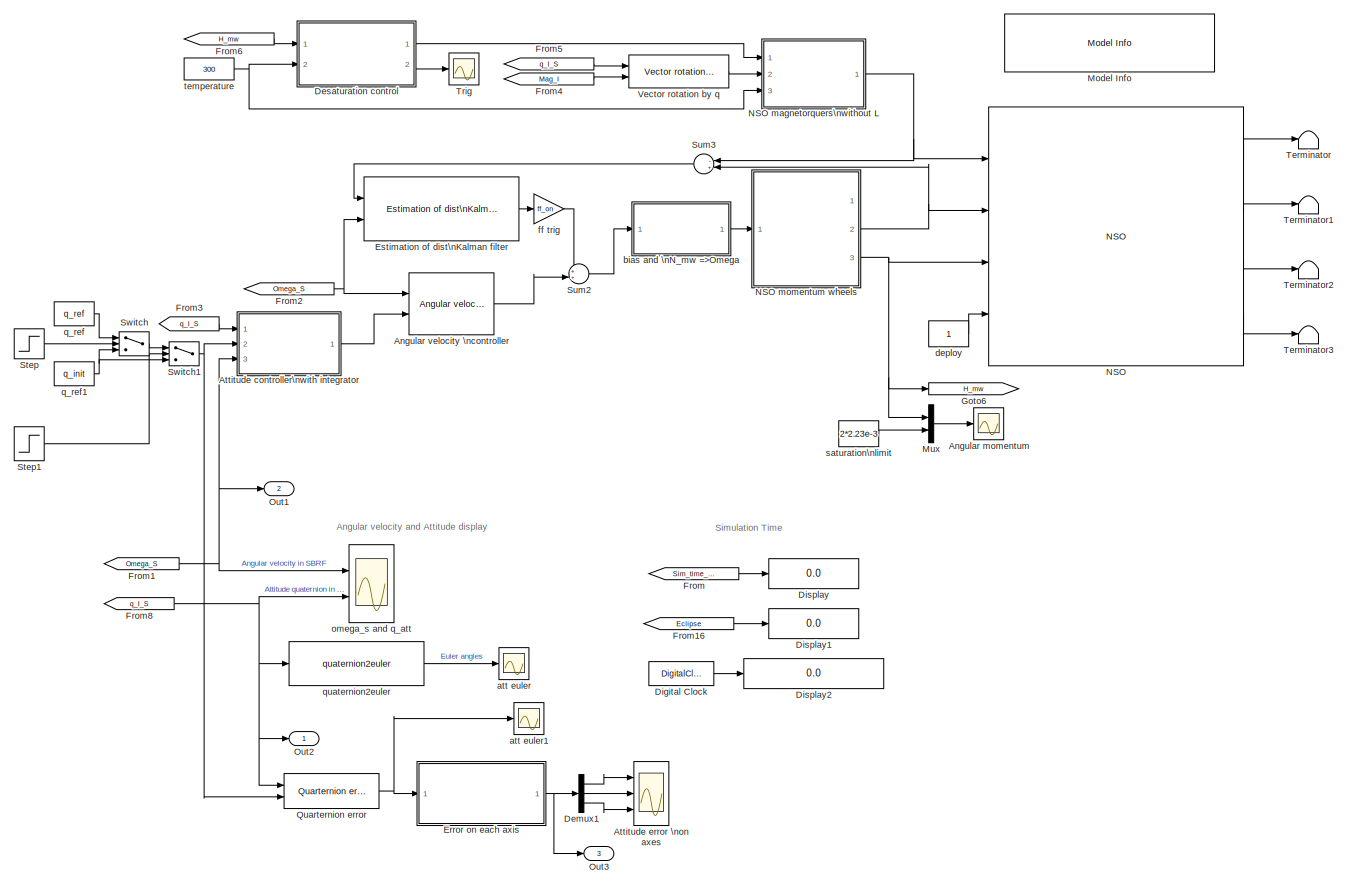
[diagram: root canvas - part 1/1, most of the canvas]
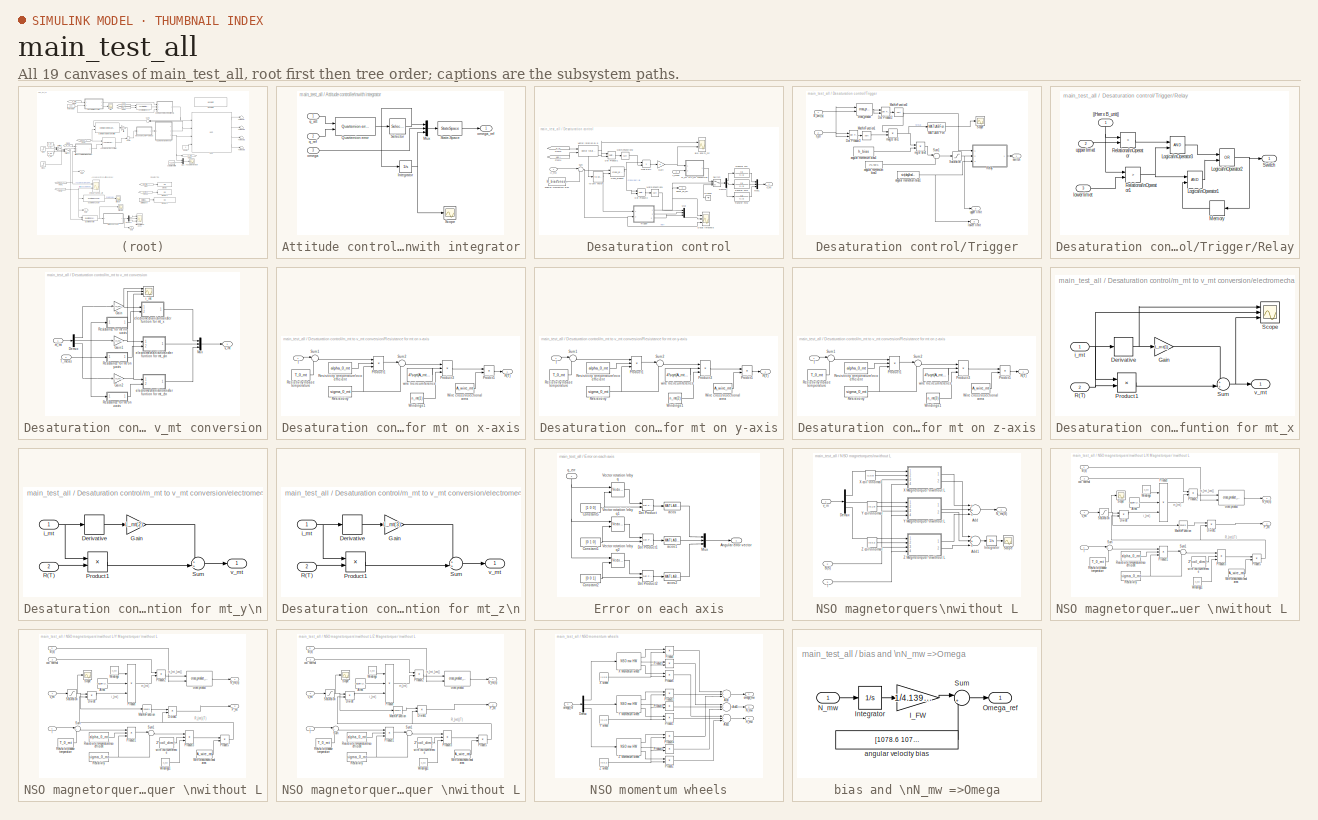
[diagram: thumbnail index - all 19 canvases of the model, root first then tree order]
MODEL main_test_all
KIND model
CONFIG PreLoadFcn = \n
CONFIG StartFcn = \n\n
BLOCK [Scope] Angular momentum
  DataFormat = StructureWithTime
  Floating = off
  LimitDataPoints = off
  NumInputPorts = 1
  Ports = [1]
  SampleTime = 0
  SaveName = ScopeData2
  YMax = 0.0045
  YMin = 0.00125
  ZoomMode = yonly
BLOCK [Reference] Angular velocity \ncontroller  REF=components_lib/ACS/Controllers/Angular velocity \ncontroller  (lib defined in mdl_419550584dda)
  Ports = [2, 1]
  ShowPortLabels = on
  SourceBlock = components_lib/ACS/Controllers/Angular velocity \ncontroller
  SourceType = Angular Velocity Controller
  ang_file_name = 'ang_robust_control.m'
BLOCK [SubSystem] Attitude controller\nwith integrator
  AncestorBlock = components_lib/ACS/Controllers/Attitude controller\nwith integrator
  MaskDescription = The controller in this block is to be constructed using a state space system. The error quarternion is calculated from the input and the result is used in the SS-system. Thus if the controller is merely a gain matrix only the D-matrix has to contain the controller and the remaining be zero-matrices. The controller design files are kept in the \"design\" directory and the definition of the controll...<+166ch>
  MaskEnableString = on
  MaskHideContents = off
  MaskIconFrame = on
  MaskIconOpaque = on
  MaskIconRotate = none
  MaskIconUnits = autoscale
  MaskInitialization = run(strcat('design/',att_file_name))
  MaskPromptString = Attitude controller design file name (remember gnyfs :-))
  MaskStyleString = edit
  MaskToolTipString = on
  MaskTunableValueString = on
  MaskType = Attitude Controller
  MaskValueString = 'att_control_with_integrator.m'
  MaskVariables = att_file_name=@1;
  MaskVisibilityString = on
  MinAlgLoopOccurrences = off
  Ports = [3, 1]
  RTWSystemCode = Auto
  TreatAsAtomicUnit = off
BLOCK [Integrator] Attitude controller\nwith integrator/Integrator
  IgnoreLimit = off
  LimitOutput = on
  LowerSaturationLimit = -0.01
  Ports = [1, 1]
  UpperSaturationLimit = 0.01
BLOCK [Mux] Attitude controller\nwith integrator/Mux
  DisplayOption = bar
  Inputs = 3
  Ports = [3, 1]
BLOCK [Reference] Attitude controller\nwith integrator/Quarternion error  REF=components_lib/Math utilities/Quaternion operations/Quarternion error  (lib defined in mdl_419550584dda)
  Ports = [2, 1]
  ShowPortLabels = on
  SourceBlock = components_lib/Math utilities/Quaternion operations/Quarternion error
  SourceType = SubSystem
BLOCK [Scope] Attitude controller\nwith integrator/Scope
  DataFormat = StructureWithTime
  Floating = off
  NumInputPorts = 1
  Ports = [1]
  SampleTime = 0
  SaveName = ScopeData10
  ZoomMode = yonly
BLOCK [Selector] Attitude controller\nwith integrator/Selector
  Elements = [1 2 3]
  InputPortWidth = 4
  Ports = [1, 1]
BLOCK [StateSpace] Attitude controller\nwith integrator/State-Space
  A = A_att_c
  B = B_att_c
  C = C_att_c
  D = D_att_c
BLOCK [Inport] Attitude controller\nwith integrator/omega
  IconDisplay = Port number
  Port = 3
BLOCK [Outport] Attitude controller\nwith integrator/omega_ref
  BusOutputAsStruct = off
  IconDisplay = Port number
BLOCK [Inport] Attitude controller\nwith integrator/q_att
  IconDisplay = Port number
BLOCK [Inport] Attitude controller\nwith integrator/q_ref
  IconDisplay = Port number
  Port = 2
BLOCK [Scope] Attitude error \non axes
  DataFormat = StructureWithTime
  Floating = off
  LimitDataPoints = off
  NumInputPorts = 3
  Ports = [3]
  SampleTime = 0
  SaveName = ScopeData5
  YMax = 3.5~5~5
  YMin = -3.5~-5~-5
  ZoomMode = yonly
BLOCK [Demux] Demux1
  DisplayOption = bar
  Outputs = 3
  Ports = [1, 3]
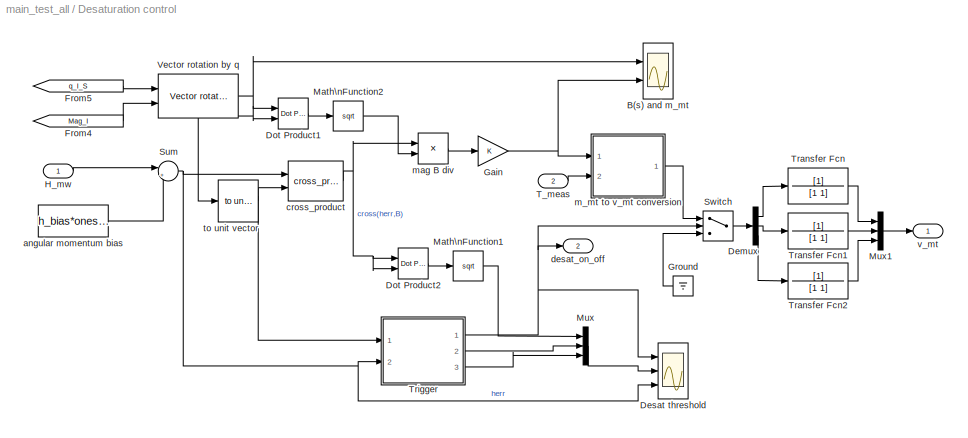
BLOCK [SubSystem] Desaturation control
  MaskCallbackString = ||
  MaskEnableString = on,on,on
  MaskHideContents = off
  MaskIconFrame = on
  MaskIconOpaque = on
  MaskIconRotate = none
  MaskIconUnits = autoscale
  MaskPromptString = Angular momentum bias|Threshold desaturation on|Threshold desaturation off
  MaskStyleString = edit,edit,edit
  MaskTabNameString = ,,
  MaskToolTipString = on,on,on
  MaskTunableValueString = on,on,on
  MaskValueString = 2.23*1e-3|0.7*2.23e-3|0.01*2.23e-3
  MaskVarAliasString = ,,
  MaskVariables = h_bias=@1;desat_on=@2;desat_off=@3;
  MaskVisibilityString = on,on,on
  MinAlgLoopOccurrences = off
  Ports = [2, 2]
  RTWSystemCode = Auto
  TreatAsAtomicUnit = off
BLOCK [Scope] Desaturation control/B(s) and m_mt
  DataFormat = StructureWithTime
  Floating = off
  LimitDataPoints = off
  NumInputPorts = 2
  Ports = [2]
  SampleTime = 0
  SaveName = ScopeData6
  YMax = 2e-005~11
  YMin = -2e-005~-1
  ZoomMode = yonly
BLOCK [Demux] Desaturation control/Demux
  DisplayOption = bar
  Outputs = 3
  Ports = [1, 3]
BLOCK [Scope] Desaturation control/Desat threshold
  DataFormat = StructureWithTime
  Floating = off
  LimitDataPoints = off
  NumInputPorts = 3
  Ports = [3]
  SampleTime = 0
  SaveName = desat_info
  SaveToWorkspace = on
  YMax = 1~0.004~0.0025
  YMin = 0~0~-0.0025
  ZoomMode = xonly
BLOCK [Reference] Desaturation control/Dot Product1  REF=simulink/Math\nOperations/Dot Product
  DoSatur = off
  InputSameDT = on
  LockScale = off
  OutDataType = sfix(16)
  OutScaling = 2^-10
  OutputDataTypeScalingMode = Inherit via internal rule
  Ports = [2, 1]
  RndMeth = Floor
  SourceBlock = simulink/Math\nOperations/Dot Product
  SourceType = Dot Product
BLOCK [Reference] Desaturation control/Dot Product2  REF=simulink/Math\nOperations/Dot Product
  DoSatur = off
  InputSameDT = on
  LockScale = off
  OutDataType = sfix(16)
  OutScaling = 2^-10
  OutputDataTypeScalingMode = Inherit via internal rule
  Ports = [2, 1]
  RndMeth = Floor
  SourceBlock = simulink/Math\nOperations/Dot Product
  SourceType = Dot Product
BLOCK [From] Desaturation control/From4
  CloseFcn = tagdialog Close
  GotoTag = Mag_I
BLOCK [From] Desaturation control/From5
  CloseFcn = tagdialog Close
  GotoTag = q_I_S
BLOCK [Gain] Desaturation control/Gain
  OutDataTypeMode = Inherit via internal rule
  ParameterDataTypeMode = Inherit via internal rule
  SaturateOnIntegerOverflow = off
BLOCK [Ground] Desaturation control/Ground
BLOCK [Inport] Desaturation control/H_mw
  IconDisplay = Port number
BLOCK [Math] Desaturation control/Math\nFunction1
  Operator = sqrt
  Ports = [1, 1]
BLOCK [Math] Desaturation control/Math\nFunction2
  Operator = sqrt
  Ports = [1, 1]
BLOCK [Mux] Desaturation control/Mux
  DisplayOption = bar
  Inputs = 3
  Ports = [3, 1]
BLOCK [Mux] Desaturation control/Mux1
  DisplayOption = bar
  Inputs = 3
  Ports = [3, 1]
BLOCK [Sum] Desaturation control/Sum
  IconShape = round
  InputSameDT = off
  Inputs = |+-
  OutDataTypeMode = Inherit via internal rule
  Ports = [2, 1]
  SaturateOnIntegerOverflow = off
BLOCK [Switch] Desaturation control/Switch
  Criteria = u2 ~= 0
  InputSameDT = off
  SaturateOnIntegerOverflow = off
  Threshold = 0.5
BLOCK [Inport] Desaturation control/T_meas
  IconDisplay = Port number
  Port = 2
BLOCK [TransferFcn] Desaturation control/Transfer Fcn
  Denominator = [1 1]
BLOCK [TransferFcn] Desaturation control/Transfer Fcn1
  Denominator = [1 1]
BLOCK [TransferFcn] Desaturation control/Transfer Fcn2
  Denominator = [1 1]
BLOCK [SubSystem] Desaturation control/Trigger
  MaskHideContents = off
  MinAlgLoopOccurrences = off
  Ports = [2, 3]
  RTWSystemCode = Auto
  TreatAsAtomicUnit = off
BLOCK [Inport] Desaturation control/Trigger/B_unit(s)
  IconDisplay = Port number
  PortDimensions = 3
BLOCK [Reference] Desaturation control/Trigger/Dot Product2  REF=simulink/Math\nOperations/Dot Product
  DoSatur = off
  InputSameDT = on
  LockScale = off
  OutDataType = sfix(16)
  OutScaling = 2^-10
  OutputDataTypeScalingMode = Inherit via internal rule
  Ports = [2, 1]
  RndMeth = Floor
  SourceBlock = simulink/Math\nOperations/Dot Product
  SourceType = Dot Product
BLOCK [Reference] Desaturation control/Trigger/Dot Product3  REF=simulink/Math\nOperations/Dot Product
  DoSatur = off
  InputSameDT = on
  LockScale = off
  OutDataType = sfix(16)
  OutScaling = 2^-10
  OutputDataTypeScalingMode = Inherit via internal rule
  Ports = [2, 1]
  RndMeth = Floor
  SourceBlock = simulink/Math\nOperations/Dot Product
  SourceType = Dot Product
BLOCK [MATLABFcn] Desaturation control/Trigger/MATLAB Fcn
  MATLABFcn = asin(u)
BLOCK [Math] Desaturation control/Trigger/Math\nFunction1
  Operator = sqrt
  Ports = [1, 1]
BLOCK [Math] Desaturation control/Trigger/Math\nFunction3
  Operator = sqrt
  Ports = [1, 1]
BLOCK [SubSystem] Desaturation control/Trigger/Relay
  MaskHideContents = off
  MinAlgLoopOccurrences = off
  Ports = [3, 1]
  RTWSystemCode = Auto
  TreatAsAtomicUnit = off
BLOCK [Logic] Desaturation control/Trigger/Relay/Logical\nOperator1
  AllPortsSameDT = off
  OutDataTypeMode = Boolean
  Ports = [2, 1]
BLOCK [Logic] Desaturation control/Trigger/Relay/Logical\nOperator2
  AllPortsSameDT = off
  Operator = OR
  OutDataTypeMode = Boolean
  Ports = [2, 1]
BLOCK [Logic] Desaturation control/Trigger/Relay/Logical\nOperator3
  AllPortsSameDT = off
  OutDataTypeMode = Boolean
  Ports = [2, 1]
BLOCK [Memory] Desaturation control/Trigger/Relay/Memory
BLOCK [RelationalOperator] Desaturation control/Trigger/Relay/Relational\nOperator
  InputSameDT = off
  LogicDataType = 1
  LogicOutDataTypeMode = Boolean
  Operator = >
BLOCK [RelationalOperator] Desaturation control/Trigger/Relay/Relational\nOperator1
  InputSameDT = off
  LogicDataType = 1
  LogicOutDataTypeMode = Boolean
  Operator = >
BLOCK [Outport] Desaturation control/Trigger/Relay/Switch
  BusOutputAsStruct = off
  IconDisplay = Port number
BLOCK [Inport] Desaturation control/Trigger/Relay/lower limet
  IconDisplay = Port number
  Port = 3
BLOCK [Inport] Desaturation control/Trigger/Relay/upper limet
  IconDisplay = Port number
  Port = 2
BLOCK [Inport] Desaturation control/Trigger/Relay/||Herr x B_unit||
  IconDisplay = Port number
BLOCK [Saturate] Desaturation control/Trigger/Saturation
  LowerLimit = 2*sin(deg2rad(2))*h_bias
  UpperLimit = inf
BLOCK [Scope] Desaturation control/Trigger/Scope
  DataFormat = StructureWithTime
  Floating = off
  NumInputPorts = 1
  Ports = [1]
  SampleTime = 0
  SaveName = ScopeData4
  YMax = 1.6
  YMin = 0.5
BLOCK [Sum] Desaturation control/Trigger/Sum1
  IconShape = round
  InputSameDT = off
  Inputs = |+-
  OutDataTypeMode = Inherit via internal rule
  Ports = [2, 1]
  SaturateOnIntegerOverflow = off
BLOCK [Constant] Desaturation control/Trigger/angular momentum bias1
  Value = sin(deg2rad(2))*h_bias
BLOCK [Constant] Desaturation control/Trigger/angular momentum bias3
  Value = 2*5.48e-5
BLOCK [Constant] Desaturation control/Trigger/angular momentum bias4
  Value = h_bias
BLOCK [Reference] Desaturation control/Trigger/cross_product  REF=components_lib/Math utilities/Vector operations/cross_product_no_fnc  (lib defined in mdl_419550584dda)
  Ports = [2, 1]
  ShowPortLabels = on
  SourceBlock = components_lib/Math utilities/Vector operations/cross_product_no_fnc
  SourceType = SubSystem
BLOCK [Inport] Desaturation control/Trigger/h_err
  IconDisplay = Port number
  Port = 2
BLOCK [Outport] Desaturation control/Trigger/lower limit
  BusOutputAsStruct = off
  IconDisplay = Port number
  Port = 3
BLOCK [Product] Desaturation control/Trigger/mag B div1
  InputSameDT = off
  Inputs = */
  OutDataTypeMode = Inherit via internal rule
  OutScaling = 2^-10
  Ports = [2, 1]
  RndMeth = Floor
  SaturateOnIntegerOverflow = off
BLOCK [Product] Desaturation control/Trigger/mg B div4
  InputSameDT = off
  OutDataTypeMode = Inherit via internal rule
  OutScaling = 2^-10
  Ports = [2, 1]
  RndMeth = Floor
  SaturateOnIntegerOverflow = off
BLOCK [Outport] Desaturation control/Trigger/switch
  BusOutputAsStruct = off
  IconDisplay = Port number
BLOCK [Outport] Desaturation control/Trigger/upper limit
  BusOutputAsStruct = off
  IconDisplay = Port number
  Port = 2
BLOCK [Reference] Desaturation control/Vector rotation by q  REF=components_lib/Math utilities/Quaternion operations/Vector rotation by q  (lib defined in mdl_419550584dda)
  Ports = [2, 1]
  ShowPortLabels = on
  SourceBlock = components_lib/Math utilities/Quaternion operations/Vector rotation by q
  SourceType = SubSystem
BLOCK [Constant] Desaturation control/angular momentum bias
  Value = h_bias*ones(1,3)
BLOCK [Reference] Desaturation control/cross_product  REF=components_lib/Math utilities/Vector operations/cross_product_no_fnc  (lib defined in mdl_419550584dda)
  Ports = [2, 1]
  ShowPortLabels = on
  SourceBlock = components_lib/Math utilities/Vector operations/cross_product_no_fnc
  SourceType = SubSystem
BLOCK [Outport] Desaturation control/desat_on_off
  BusOutputAsStruct = off
  IconDisplay = Port number
  Port = 2
BLOCK [SubSystem] Desaturation control/m_mt to v_mt conversion
  MaskCallbackString = |||
  MaskEnableString = on,on,on,on
  MaskHideContents = off
  MaskIconFrame = on
  MaskIconOpaque = on
  MaskIconRotate = none
  MaskIconUnits = autoscale
  MaskPromptString = Coil winding number [n_x n_y n_z]|Coil area [A_mt_x A_mt_y A_mt_z] |Coil inductance [L_mt_x L_mt_y L_mt_z]|Maximum voltage
  MaskStyleString = edit,edit,edit,edit
  MaskTabNameString = ,,,
  MaskToolTipString = on,on,on,on
  MaskTunableValueString = on,on,on,on
  MaskValueString = [435 435 865]|[0.21*0.07 0.21*0.07 0.07*0.07]|[26.956e-3 26.956e-3 59.256e-3]|5
  MaskVarAliasString = ,,,
  MaskVariables = n_mt=@1;A_mt=@2;L_mt=@3;v_max_mt=@4;
  MaskVisibilityString = on,on,on,on
  MinAlgLoopOccurrences = off
  Ports = [2, 1]
  RTWSystemCode = Auto
  TreatAsAtomicUnit = off
BLOCK [Demux] Desaturation control/m_mt to v_mt conversion/Demux
  DisplayOption = bar
  Outputs = 3
  Ports = [1, 3]
BLOCK [Gain] Desaturation control/m_mt to v_mt conversion/Gain
  Gain = 1/(n_mt(1)*A_mt(1))
  OutDataTypeMode = Inherit via internal rule
  ParameterDataTypeMode = Inherit via internal rule
  SaturateOnIntegerOverflow = off
BLOCK [Gain] Desaturation control/m_mt to v_mt conversion/Gain1
  Gain = 1/(n_mt(2)*A_mt(2))
  OutDataTypeMode = Inherit via internal rule
  ParameterDataTypeMode = Inherit via internal rule
  SaturateOnIntegerOverflow = off
BLOCK [Gain] Desaturation control/m_mt to v_mt conversion/Gain2
  Gain = 1/(n_mt(3)*A_mt(3))
  OutDataTypeMode = Inherit via internal rule
  ParameterDataTypeMode = Inherit via internal rule
  SaturateOnIntegerOverflow = off
BLOCK [Mux] Desaturation control/m_mt to v_mt conversion/Mux
  DisplayOption = bar
  Inputs = 3
  Ports = [3, 1]
BLOCK [SubSystem] Desaturation control/m_mt to v_mt conversion/Resistance for mt on x-axis
  MaskCallbackString = |||
  MaskEnableString = on,on,on,on
  MaskHideContents = off
  MaskIconFrame = on
  MaskIconOpaque = on
  MaskIconRotate = none
  MaskIconUnits = autoscale
  MaskPromptString = Wire cross sectional area|Wire resistivity|Wire resistivity temp. coef.|Wire resistivity base temp.
  MaskStyleString = edit,edit,edit,edit
  MaskTabNameString = ,,,
  MaskToolTipString = on,on,on,on
  MaskTunableValueString = on,on,on,on
  MaskValueString = (pi/4)*0.0002^2|1.7e-8|3.9e-3|293
  MaskVarAliasString = ,,,
  MaskVariables = A_wire_mt=@1;sigma_0_mt=@2;alpha_0_mt=@3;T_0_mt=@4;
  MaskVisibilityString = on,on,on,on
  MinAlgLoopOccurrences = off
  Ports = [1, 1]
  RTWSystemCode = Auto
  TreatAsAtomicUnit = off
BLOCK [Product] Desaturation control/m_mt to v_mt conversion/Resistance for mt on x-axis/Prodct5
  InputSameDT = off
  Inputs = */
  OutDataTypeMode = Inherit via internal rule
  Ports = [2, 1]
  SaturateOnIntegerOverflow = off
BLOCK [Product] Desaturation control/m_mt to v_mt conversion/Resistance for mt on x-axis/Product1
  InputSameDT = off
  Inputs = 3
  OutDataTypeMode = Inherit via internal rule
  Ports = [3, 1]
  SaturateOnIntegerOverflow = off
BLOCK [Product] Desaturation control/m_mt to v_mt conversion/Resistance for mt on x-axis/Product3
  InputSameDT = off
  Inputs = 3
  OutDataTypeMode = Inherit via internal rule
  Ports = [3, 1]
  SaturateOnIntegerOverflow = off
BLOCK [Outport] Desaturation control/m_mt to v_mt conversion/Resistance for mt on x-axis/R(T)
  BusOutputAsStruct = off
  IconDisplay = Port number
BLOCK [Constant] Desaturation control/m_mt to v_mt conversion/Resistance for mt on x-axis/Resistivity
  Value = sigma_0_mt
BLOCK [Constant] Desaturation control/m_mt to v_mt conversion/Resistance for mt on x-axis/Resistivity temperature\ncoefficient
  Value = alpha_0_mt
BLOCK [Constant] Desaturation control/m_mt to v_mt conversion/Resistance for mt on x-axis/Resistivity\nbase temperature
  Value = T_0_mt
BLOCK [Sum] Desaturation control/m_mt to v_mt conversion/Resistance for mt on x-axis/Sum1
  IconShape = round
  InputSameDT = off
  Inputs = |+-
  OutDataTypeMode = Inherit via internal rule
  Ports = [2, 1]
  SaturateOnIntegerOverflow = off
BLOCK [Sum] Desaturation control/m_mt to v_mt conversion/Resistance for mt on x-axis/Sum2
  IconShape = round
  InputSameDT = off
  Inputs = |++
  OutDataTypeMode = Inherit via internal rule
  Ports = [2, 1]
  SaturateOnIntegerOverflow = off
BLOCK [Inport] Desaturation control/m_mt to v_mt conversion/Resistance for mt on x-axis/T
  IconDisplay = Port number
BLOCK [Constant] Desaturation control/m_mt to v_mt conversion/Resistance for mt on x-axis/Windings1
  Value = n_mt(1)
BLOCK [Constant] Desaturation control/m_mt to v_mt conversion/Resistance for mt on x-axis/Wire cross\nsectional area
  Value = A_wire_mt
BLOCK [Constant] Desaturation control/m_mt to v_mt conversion/Resistance for mt on x-axis/wire \ncircumference
  Value = 4*sqrt(A_mt(1))
BLOCK [SubSystem] Desaturation control/m_mt to v_mt conversion/Resistance for mt on y-axis
  MaskCallbackString = |||
  MaskEnableString = on,on,on,on
  MaskHideContents = off
  MaskIconFrame = on
  MaskIconOpaque = on
  MaskIconRotate = none
  MaskIconUnits = autoscale
  MaskPromptString = Wire cross sectional area|Wire resistivity|Wire resistivity temp. coef.|Wire resistivity base temp.
  MaskStyleString = edit,edit,edit,edit
  MaskTabNameString = ,,,
  MaskToolTipString = on,on,on,on
  MaskTunableValueString = on,on,on,on
  MaskValueString = (pi/4)*0.0002^2|1.7e-8|3.9e-3|293
  MaskVarAliasString = ,,,
  MaskVariables = A_wire_mt=@1;sigma_0_mt=@2;alpha_0_mt=@3;T_0_mt=@4;
  MaskVisibilityString = on,on,on,on
  MinAlgLoopOccurrences = off
  Ports = [1, 1]
  RTWSystemCode = Auto
  TreatAsAtomicUnit = off
BLOCK [Product] Desaturation control/m_mt to v_mt conversion/Resistance for mt on y-axis/Prodct5
  InputSameDT = off
  Inputs = */
  OutDataTypeMode = Inherit via internal rule
  Ports = [2, 1]
  SaturateOnIntegerOverflow = off
BLOCK [Product] Desaturation control/m_mt to v_mt conversion/Resistance for mt on y-axis/Product1
  InputSameDT = off
  Inputs = 3
  OutDataTypeMode = Inherit via internal rule
  Ports = [3, 1]
  SaturateOnIntegerOverflow = off
BLOCK [Product] Desaturation control/m_mt to v_mt conversion/Resistance for mt on y-axis/Product3
  InputSameDT = off
  Inputs = 3
  OutDataTypeMode = Inherit via internal rule
  Ports = [3, 1]
  SaturateOnIntegerOverflow = off
BLOCK [Outport] Desaturation control/m_mt to v_mt conversion/Resistance for mt on y-axis/R(T)
  BusOutputAsStruct = off
  IconDisplay = Port number
BLOCK [Constant] Desaturation control/m_mt to v_mt conversion/Resistance for mt on y-axis/Resistivity
  Value = sigma_0_mt
BLOCK [Constant] Desaturation control/m_mt to v_mt conversion/Resistance for mt on y-axis/Resistivity temperature\ncoefficient
  Value = alpha_0_mt
BLOCK [Constant] Desaturation control/m_mt to v_mt conversion/Resistance for mt on y-axis/Resistivity\nbase temperature
  Value = T_0_mt
BLOCK [Sum] Desaturation control/m_mt to v_mt conversion/Resistance for mt on y-axis/Sum1
  IconShape = round
  InputSameDT = off
  Inputs = |+-
  OutDataTypeMode = Inherit via internal rule
  Ports = [2, 1]
  SaturateOnIntegerOverflow = off
BLOCK [Sum] Desaturation control/m_mt to v_mt conversion/Resistance for mt on y-axis/Sum2
  IconShape = round
  InputSameDT = off
  Inputs = |++
  OutDataTypeMode = Inherit via internal rule
  Ports = [2, 1]
  SaturateOnIntegerOverflow = off
BLOCK [Inport] Desaturation control/m_mt to v_mt conversion/Resistance for mt on y-axis/T
  IconDisplay = Port number
BLOCK [Constant] Desaturation control/m_mt to v_mt conversion/Resistance for mt on y-axis/Windings1
  Value = n_mt(2)
BLOCK [Constant] Desaturation control/m_mt to v_mt conversion/Resistance for mt on y-axis/Wire cross\nsectional area
  Value = A_wire_mt
BLOCK [Constant] Desaturation control/m_mt to v_mt conversion/Resistance for mt on y-axis/wire \ncircumference
  Value = 4*sqrt(A_mt(2))
BLOCK [SubSystem] Desaturation control/m_mt to v_mt conversion/Resistance for mt on z-axis
  MaskCallbackString = |||
  MaskEnableString = on,on,on,on
  MaskHideContents = off
  MaskIconFrame = on
  MaskIconOpaque = on
  MaskIconRotate = none
  MaskIconUnits = autoscale
  MaskPromptString = Wire cross sectional area|Wire resistivity|Wire resistivity temp. coef.|Wire resistivity base temp.
  MaskStyleString = edit,edit,edit,edit
  MaskTabNameString = ,,,
  MaskToolTipString = on,on,on,on
  MaskTunableValueString = on,on,on,on
  MaskValueString = (pi/4)*0.0002^2|1.7e-8|3.9e-3|293
  MaskVarAliasString = ,,,
  MaskVariables = A_wire_mt=@1;sigma_0_mt=@2;alpha_0_mt=@3;T_0_mt=@4;
  MaskVisibilityString = on,on,on,on
  MinAlgLoopOccurrences = off
  Ports = [1, 1]
  RTWSystemCode = Auto
  TreatAsAtomicUnit = off
BLOCK [Product] Desaturation control/m_mt to v_mt conversion/Resistance for mt on z-axis/Prodct5
  InputSameDT = off
  Inputs = */
  OutDataTypeMode = Inherit via internal rule
  Ports = [2, 1]
  SaturateOnIntegerOverflow = off
BLOCK [Product] Desaturation control/m_mt to v_mt conversion/Resistance for mt on z-axis/Product1
  InputSameDT = off
  Inputs = 3
  OutDataTypeMode = Inherit via internal rule
  Ports = [3, 1]
  SaturateOnIntegerOverflow = off
BLOCK [Product] Desaturation control/m_mt to v_mt conversion/Resistance for mt on z-axis/Product3
  InputSameDT = off
  Inputs = 3
  OutDataTypeMode = Inherit via internal rule
  Ports = [3, 1]
  SaturateOnIntegerOverflow = off
BLOCK [Outport] Desaturation control/m_mt to v_mt conversion/Resistance for mt on z-axis/R(T)
  BusOutputAsStruct = off
  IconDisplay = Port number
BLOCK [Constant] Desaturation control/m_mt to v_mt conversion/Resistance for mt on z-axis/Resistivity
  Value = sigma_0_mt
BLOCK [Constant] Desaturation control/m_mt to v_mt conversion/Resistance for mt on z-axis/Resistivity temperature\ncoefficient
  Value = alpha_0_mt
BLOCK [Constant] Desaturation control/m_mt to v_mt conversion/Resistance for mt on z-axis/Resistivity\nbase temperature
  Value = T_0_mt
BLOCK [Sum] Desaturation control/m_mt to v_mt conversion/Resistance for mt on z-axis/Sum1
  IconShape = round
  InputSameDT = off
  Inputs = |+-
  OutDataTypeMode = Inherit via internal rule
  Ports = [2, 1]
  SaturateOnIntegerOverflow = off
BLOCK [Sum] Desaturation control/m_mt to v_mt conversion/Resistance for mt on z-axis/Sum2
  IconShape = round
  InputSameDT = off
  Inputs = |++
  OutDataTypeMode = Inherit via internal rule
  Ports = [2, 1]
  SaturateOnIntegerOverflow = off
BLOCK [Inport] Desaturation control/m_mt to v_mt conversion/Resistance for mt on z-axis/T
  IconDisplay = Port number
BLOCK [Constant] Desaturation control/m_mt to v_mt conversion/Resistance for mt on z-axis/Windings1
  Value = n_mt(3)
BLOCK [Constant] Desaturation control/m_mt to v_mt conversion/Resistance for mt on z-axis/Wire cross\nsectional area
  Value = A_wire_mt
BLOCK [Constant] Desaturation control/m_mt to v_mt conversion/Resistance for mt on z-axis/wire \ncircumference
  Value = 4*sqrt(A_mt(3))
BLOCK [Inport] Desaturation control/m_mt to v_mt conversion/T_meas
  IconDisplay = Port number
  Port = 2
BLOCK [SubSystem] Desaturation control/m_mt to v_mt conversion/electromechanis\ntransfer funtion for mt_x
  MaskHideContents = off
  MinAlgLoopOccurrences = off
  Ports = [2, 1]
  RTWSystemCode = Auto
  TreatAsAtomicUnit = off
BLOCK [Derivative] Desaturation control/m_mt to v_mt conversion/electromechanis\ntransfer funtion for mt_x/Derivative
BLOCK [Gain] Desaturation control/m_mt to v_mt conversion/electromechanis\ntransfer funtion for mt_x/Gain
  Gain = L_mt(1)
  OutDataTypeMode = Inherit via internal rule
  ParameterDataTypeMode = Inherit via internal rule
  SaturateOnIntegerOverflow = off
BLOCK [Product] Desaturation control/m_mt to v_mt conversion/electromechanis\ntransfer funtion for mt_x/Product1
  InputSameDT = off
  OutDataTypeMode = Inherit via internal rule
  Ports = [2, 1]
  SaturateOnIntegerOverflow = off
BLOCK [Inport] Desaturation control/m_mt to v_mt conversion/electromechanis\ntransfer funtion for mt_x/R(T)
  IconDisplay = Port number
  Port = 2
BLOCK [Scope] Desaturation control/m_mt to v_mt conversion/electromechanis\ntransfer funtion for mt_x/Scope
  DataFormat = StructureWithTime
  Floating = off
  LimitDataPoints = off
  NumInputPorts = 3
  Ports = [3]
  SampleTime = 0
  SaveName = ScopeData9
  YMax = 5~5~5
  YMin = -5~-5~-5
BLOCK [Sum] Desaturation control/m_mt to v_mt conversion/electromechanis\ntransfer funtion for mt_x/Sum
  IconShape = round
  InputSameDT = off
  Inputs = ++|
  OutDataTypeMode = Inherit via internal rule
  Ports = [2, 1]
  SaturateOnIntegerOverflow = off
BLOCK [Inport] Desaturation control/m_mt to v_mt conversion/electromechanis\ntransfer funtion for mt_x/i_mt
  IconDisplay = Port number
BLOCK [Outport] Desaturation control/m_mt to v_mt conversion/electromechanis\ntransfer funtion for mt_x/v_mt
  BusOutputAsStruct = off
  IconDisplay = Port number
BLOCK [SubSystem] Desaturation control/m_mt to v_mt conversion/electromechanis\ntransfer funtion for mt_y\n
  MaskHideContents = off
  MinAlgLoopOccurrences = off
  Ports = [2, 1]
  RTWSystemCode = Auto
  TreatAsAtomicUnit = off
BLOCK [Derivative] Desaturation control/m_mt to v_mt conversion/electromechanis\ntransfer funtion for mt_y\n/Derivative
BLOCK [Gain] Desaturation control/m_mt to v_mt conversion/electromechanis\ntransfer funtion for mt_y\n/Gain
  Gain = L_mt(2)
  OutDataTypeMode = Inherit via internal rule
  ParameterDataTypeMode = Inherit via internal rule
  SaturateOnIntegerOverflow = off
BLOCK [Product] Desaturation control/m_mt to v_mt conversion/electromechanis\ntransfer funtion for mt_y\n/Product1
  InputSameDT = off
  OutDataTypeMode = Inherit via internal rule
  Ports = [2, 1]
  SaturateOnIntegerOverflow = off
BLOCK [Inport] Desaturation control/m_mt to v_mt conversion/electromechanis\ntransfer funtion for mt_y\n/R(T)
  IconDisplay = Port number
  Port = 2
BLOCK [Sum] Desaturation control/m_mt to v_mt conversion/electromechanis\ntransfer funtion for mt_y\n/Sum
  IconShape = round
  InputSameDT = off
  Inputs = ++|
  OutDataTypeMode = Inherit via internal rule
  Ports = [2, 1]
  SaturateOnIntegerOverflow = off
BLOCK [Inport] Desaturation control/m_mt to v_mt conversion/electromechanis\ntransfer funtion for mt_y\n/i_mt
  IconDisplay = Port number
BLOCK [Outport] Desaturation control/m_mt to v_mt conversion/electromechanis\ntransfer funtion for mt_y\n/v_mt
  BusOutputAsStruct = off
  IconDisplay = Port number
BLOCK [SubSystem] Desaturation control/m_mt to v_mt conversion/electromechanis\ntransfer funtion for mt_z\n
  MaskHideContents = off
  MinAlgLoopOccurrences = off
  Ports = [2, 1]
  RTWSystemCode = Auto
  TreatAsAtomicUnit = off
BLOCK [Derivative] Desaturation control/m_mt to v_mt conversion/electromechanis\ntransfer funtion for mt_z\n/Derivative
BLOCK [Gain] Desaturation control/m_mt to v_mt conversion/electromechanis\ntransfer funtion for mt_z\n/Gain
  Gain = L_mt(3)
  OutDataTypeMode = Inherit via internal rule
  ParameterDataTypeMode = Inherit via internal rule
  SaturateOnIntegerOverflow = off
BLOCK [Product] Desaturation control/m_mt to v_mt conversion/electromechanis\ntransfer funtion for mt_z\n/Product1
  InputSameDT = off
  OutDataTypeMode = Inherit via internal rule
  Ports = [2, 1]
  SaturateOnIntegerOverflow = off
BLOCK [Inport] Desaturation control/m_mt to v_mt conversion/electromechanis\ntransfer funtion for mt_z\n/R(T)
  IconDisplay = Port number
  Port = 2
BLOCK [Sum] Desaturation control/m_mt to v_mt conversion/electromechanis\ntransfer funtion for mt_z\n/Sum
  IconShape = round
  InputSameDT = off
  Inputs = ++|
  OutDataTypeMode = Inherit via internal rule
  Ports = [2, 1]
  SaturateOnIntegerOverflow = off
BLOCK [Inport] Desaturation control/m_mt to v_mt conversion/electromechanis\ntransfer funtion for mt_z\n/i_mt
  IconDisplay = Port number
BLOCK [Outport] Desaturation control/m_mt to v_mt conversion/electromechanis\ntransfer funtion for mt_z\n/v_mt
  BusOutputAsStruct = off
  IconDisplay = Port number
BLOCK [Scope] Desaturation control/m_mt to v_mt conversion/i_mt
  DataFormat = StructureWithTime
  Floating = off
  LimitDataPoints = off
  NumInputPorts = 3
  Ports = [3]
  SampleTime = 0
  SaveName = ScopeData8
  YMax = 5~5~5
  YMin = -5~-5~-5
BLOCK [Inport] Desaturation control/m_mt to v_mt conversion/m_mt
  IconDisplay = Port number
BLOCK [Outport] Desaturation control/m_mt to v_mt conversion/v_mt
  BusOutputAsStruct = off
  IconDisplay = Port number
BLOCK [Product] Desaturation control/mag B div
  InputSameDT = off
  Inputs = */
  OutDataTypeMode = Inherit via internal rule
  OutScaling = 2^-10
  Ports = [2, 1]
  RndMeth = Floor
  SaturateOnIntegerOverflow = off
BLOCK [Reference] Desaturation control/to unit vector  REF=components_lib/Math utilities/Vector operations/to unit vector  (lib defined in mdl_419550584dda)
  Ports = [1, 1]
  ShowPortLabels = on
  SourceBlock = components_lib/Math utilities/Vector operations/to unit vector
  SourceType = SubSystem
BLOCK [Outport] Desaturation control/v_mt
  BusOutputAsStruct = off
  IconDisplay = Port number
BLOCK [DigitalClock] Digital Clock
BLOCK [Display] Display
  Decimation = 1
  Lockdown = off
  Ports = [1]
BLOCK [Display] Display1
  Decimation = 1
  Lockdown = off
  Ports = [1]
BLOCK [Display] Display2
  Decimation = 1
  Format = long
  Lockdown = off
  Ports = [1]
BLOCK [SubSystem] Error on each axis
  MaskHideContents = off
  MinAlgLoopOccurrences = off
  Ports = [1, 1]
  RTWSystemCode = Auto
  TreatAsAtomicUnit = off
BLOCK [Outport] Error on each axis/Angular error vector
  BusOutputAsStruct = off
  IconDisplay = Port number
BLOCK [Constant] Error on each axis/Constant1
  Value = [0 1 0]
BLOCK [Constant] Error on each axis/Constant2
  Value = [0 0 1]
BLOCK [Constant] Error on each axis/Constant5
  Value = [1 0 0]
BLOCK [Reference] Error on each axis/Dot Product  REF=simulink/Math\nOperations/Dot Product
  DoSatur = off
  InputSameDT = on
  LockScale = off
  OutDataType = sfix(16)
  OutScaling = 2^-10
  OutputDataTypeScalingMode = Inherit via internal rule
  Ports = [2, 1]
  RndMeth = Floor
  SourceBlock = simulink/Math\nOperations/Dot Product
  SourceType = Dot Product
BLOCK [Reference] Error on each axis/Dot Product1  REF=simulink/Math\nOperations/Dot Product
  DoSatur = off
  InputSameDT = on
  LockScale = off
  OutDataType = sfix(16)
  OutScaling = 2^-10
  OutputDataTypeScalingMode = Inherit via internal rule
  Ports = [2, 1]
  RndMeth = Floor
  SourceBlock = simulink/Math\nOperations/Dot Product
  SourceType = Dot Product
BLOCK [Reference] Error on each axis/Dot Product2  REF=simulink/Math\nOperations/Dot Product
  DoSatur = off
  InputSameDT = on
  LockScale = off
  OutDataType = sfix(16)
  OutScaling = 2^-10
  OutputDataTypeScalingMode = Inherit via internal rule
  Ports = [2, 1]
  RndMeth = Floor
  SourceBlock = simulink/Math\nOperations/Dot Product
  SourceType = Dot Product
BLOCK [Mux] Error on each axis/Mux
  DisplayOption = bar
  Inputs = 3
  Ports = [3, 1]
BLOCK [Reference] Error on each axis/Vector rotation \nby q  REF=components_lib/Math utilities/Quaternion operations/Vector rotation by q  (lib defined in mdl_419550584dda)
  Ports = [2, 1]
  ShowPortLabels = on
  SourceBlock = components_lib/Math utilities/Quaternion operations/Vector rotation by q
  SourceType = SubSystem
BLOCK [Reference] Error on each axis/Vector rotation \nby q1  REF=components_lib/Math utilities/Quaternion operations/Vector rotation by q  (lib defined in mdl_419550584dda)
  Ports = [2, 1]
  ShowPortLabels = on
  SourceBlock = components_lib/Math utilities/Quaternion operations/Vector rotation by q
  SourceType = SubSystem
BLOCK [Reference] Error on each axis/Vector rotation \nby q2  REF=components_lib/Math utilities/Quaternion operations/Vector rotation by q  (lib defined in mdl_419550584dda)
  Ports = [2, 1]
  ShowPortLabels = on
  SourceBlock = components_lib/Math utilities/Quaternion operations/Vector rotation by q
  SourceType = SubSystem
BLOCK [MATLABFcn] Error on each axis/acos
  MATLABFcn = real(acos(u))/pi*180
BLOCK [MATLABFcn] Error on each axis/acos1
  MATLABFcn = real(acos(u))/pi*180
BLOCK [MATLABFcn] Error on each axis/acos2
  MATLABFcn = real(acos(u))/pi*180
BLOCK [Inport] Error on each axis/q_err
  IconDisplay = Port number
BLOCK [Reference] Estimation of dist\nKalman filter  REF=components_lib/ACS/Controllers/Estimation of dist\nKalman filter  (lib defined in mdl_419550584dda)
  Ports = [2, 1]
  ShowPortLabels = on
  SourceBlock = components_lib/ACS/Controllers/Estimation of dist\nKalman filter
  SourceType = Estimator Block
  ang_file_name = 'kalman_estimator.m'
BLOCK [From] From
  CloseFcn = tagdialog Close
  GotoTag = Sim_time_JD
BLOCK [From] From1
  CloseFcn = tagdialog Close
  GotoTag = Omega_S
BLOCK [From] From16
  CloseFcn = tagdialog Close
  GotoTag = Eclipse
BLOCK [From] From2
  CloseFcn = tagdialog Close
  GotoTag = Omega_S
BLOCK [From] From3
  CloseFcn = tagdialog Close
  GotoTag = q_I_S
BLOCK [From] From4
  CloseFcn = tagdialog Close
  GotoTag = Mag_I
BLOCK [From] From5
  CloseFcn = tagdialog Close
  GotoTag = q_I_S
BLOCK [From] From6
  CloseFcn = tagdialog Close
  GotoTag = H_mw
BLOCK [From] From8
  CloseFcn = tagdialog Close
  GotoTag = q_I_S
BLOCK [Goto] Goto6
  GotoTag = H_mw
  TagVisibility = global
BLOCK [Reference] Model Info  REF=simulink/Model-Wide\nUtilities/Model Info
  BlockCM = None
  DisplayStringWithTags = sun to eclipse : 2452315.560376\n32 sec. before : 2452315.56\neclipse to sun : 2452315.513363
  Frame = on
  HorizontalTextAlignment = Center
  InitialBlockCM = None
  LeftAlignmentValue = 0.5
  MaskDisplayString = sun to eclipse : 2452315.560376\\n32 sec. before : 2452315.56\\neclipse to sun : 2452315.513363
  Ports = []
  ShowPortLabels = on
  SourceBlock = simulink/Model-Wide\nUtilities/Model Info
  SourceBlockDiagram = main_test_all
  SourceType = CMBlock
  TagMaxNumber = 20
BLOCK [Mux] Mux
  DisplayOption = bar
  Inputs = 2
  Ports = [2, 1]
BLOCK [Reference] NSO  REF=components_lib/NSO  (lib defined in mdl_419550584dda)
  Cd = drag_coef
  Description = AAUSAT-II Model
  Dim = [0.1 0.1 0.3]
  Ports = [4, 4]
  ShowPortLabels = on
  SourceBlock = components_lib/NSO
  Tag = AAUSAT-II Model
  alb_emu_enabled = off
  enable_dist = on
  enable_sensor_emulation = off
  inertia_c = [25 25 5]/1e3
  inertia_d = I_sat
  init_jd = 2452315.56
  mass_sc = 3
  q_init_s_i = q_init
  q_s_c = [0 0 0 1]
  r_com_s = [0.05 0.05 0.15]
  r_com_s_deployed = [0.05 0.05 0.125]
  rho = ro_air
  sat_temp_start = 0
  w_init_s = omega_init
BLOCK [SubSystem] NSO magnetorquers\nwithout L
  AncestorBlock = components_lib/Actuator Emulation/NSO magnetorquers\nwithout L
  MaskHideContents = off
  MinAlgLoopOccurrences = off
  Ports = [3, 1]
  RTWSystemCode = Auto
  TreatAsAtomicUnit = off
BLOCK [Sum] NSO magnetorquers\nwithout L/Add
  InputSameDT = off
  Inputs = +++
  OutDataTypeMode = Inherit via internal rule
  OutScaling = 2^-10
  Ports = [3, 1]
  SaturateOnIntegerOverflow = off
BLOCK [Sum] NSO magnetorquers\nwithout L/Add1
  InputSameDT = off
  Inputs = +++
  OutDataTypeMode = Inherit via internal rule
  OutScaling = 2^-10
  Ports = [3, 1]
  SaturateOnIntegerOverflow = off
BLOCK [Inport] NSO magnetorquers\nwithout L/B(S)
  IconDisplay = Port number
  Port = 2
BLOCK [Demux] NSO magnetorquers\nwithout L/Demux
  DisplayOption = bar
  Outputs = 3
  Ports = [1, 3]
BLOCK [Integrator] NSO magnetorquers\nwithout L/Integrator
  IgnoreLimit = off
  Ports = [1, 1]
BLOCK [Outport] NSO magnetorquers\nwithout L/N_mt(S)
  BusOutputAsStruct = off
  IconDisplay = Port number
  PortDimensions = 3
BLOCK [Scope] NSO magnetorquers\nwithout L/Scope
  DataFormat = StructureWithTime
  Floating = off
  LimitDataPoints = off
  NumInputPorts = 1
  Ports = [1]
  SampleTime = 0
  SaveName = power_mt
  SaveToWorkspace = on
  YMax = 25.2
  YMin = 24.35
  ZoomMode = yonly
BLOCK [Inport] NSO magnetorquers\nwithout L/T
  IconDisplay = Port number
  Port = 3
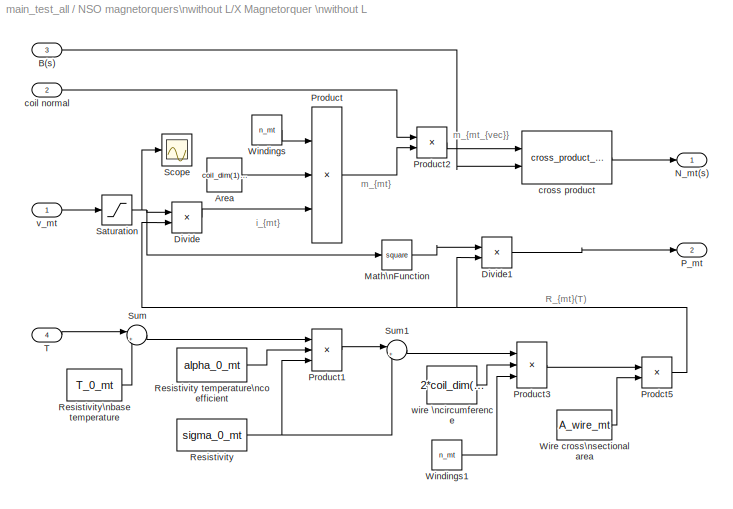
BLOCK [SubSystem] NSO magnetorquers\nwithout L/X Magnetorquer \nwithout L 
  AncestorBlock = components_lib/Actuator Emulation/Magnetorquer without L
  MaskCallbackString = ||||||
  MaskEnableString = on,on,on,on,on,on,on
  MaskHideContents = off
  MaskIconFrame = on
  MaskIconOpaque = on
  MaskIconRotate = none
  MaskIconUnits = autoscale
  MaskPromptString = Maximum voltage|Coil dimensions [x y]|Coil winding number|Wire cross sectional area|Wire resistivity|Wire resistivity temp. coef.|Wire resistivity base temp.
  MaskStyleString = edit,edit,edit,edit,edit,edit,edit
  MaskTabNameString = ,,,,,,
  MaskToolTipString = on,on,on,on,on,on,on
  MaskTunableValueString = on,on,on,on,on,on,on
  MaskValueString = 5|[0.07 0.21]|435|(pi/4)*0.0002^2|1.7e-8|3.9e-3|293
  MaskVarAliasString = ,,,,,,
  MaskVariables = v_max_mt=@1;coil_dim=@2;n_mt=@3;A_wire_mt=@4;sigma_0_mt=@5;alpha_0_mt=@6;T_0_mt=@7;
  MaskVisibilityString = on,on,on,on,on,on,on
  MinAlgLoopOccurrences = off
  Ports = [4, 2]
  RTWSystemCode = Auto
  TreatAsAtomicUnit = off
BLOCK [Constant] NSO magnetorquers\nwithout L/X Magnetorquer \nwithout L /Area
  Value = coil_dim(1)*coil_dim(2)
BLOCK [Inport] NSO magnetorquers\nwithout L/X Magnetorquer \nwithout L /B(s)
  IconDisplay = Port number
  Port = 3
BLOCK [Product] NSO magnetorquers\nwithout L/X Magnetorquer \nwithout L /Divide
  InputSameDT = off
  Inputs = */
  OutDataTypeMode = Inherit via internal rule
  OutScaling = 2^-10
  Ports = [2, 1]
  RndMeth = Floor
  SaturateOnIntegerOverflow = off
BLOCK [Product] NSO magnetorquers\nwithout L/X Magnetorquer \nwithout L /Divide1
  InputSameDT = off
  Inputs = */
  OutDataTypeMode = Inherit via internal rule
  OutScaling = 2^-10
  Ports = [2, 1]
  RndMeth = Floor
  SaturateOnIntegerOverflow = off
BLOCK [Math] NSO magnetorquers\nwithout L/X Magnetorquer \nwithout L /Math\nFunction
  Operator = square
  Ports = [1, 1]
BLOCK [Outport] NSO magnetorquers\nwithout L/X Magnetorquer \nwithout L /N_mt(s)
  BusOutputAsStruct = off
  IconDisplay = Port number
BLOCK [Outport] NSO magnetorquers\nwithout L/X Magnetorquer \nwithout L /P_mt
  BusOutputAsStruct = off
  IconDisplay = Port number
  Port = 2
BLOCK [Product] NSO magnetorquers\nwithout L/X Magnetorquer \nwithout L /Prodct5
  InputSameDT = off
  Inputs = */
  OutDataTypeMode = Inherit via internal rule
  Ports = [2, 1]
  SaturateOnIntegerOverflow = off
BLOCK [Product] NSO magnetorquers\nwithout L/X Magnetorquer \nwithout L /Product
  InputSameDT = off
  Inputs = 3
  OutDataTypeMode = Inherit via internal rule
  Ports = [3, 1]
  SaturateOnIntegerOverflow = off
BLOCK [Product] NSO magnetorquers\nwithout L/X Magnetorquer \nwithout L /Product1
  InputSameDT = off
  Inputs = 3
  OutDataTypeMode = Inherit via internal rule
  Ports = [3, 1]
  SaturateOnIntegerOverflow = off
BLOCK [Product] NSO magnetorquers\nwithout L/X Magnetorquer \nwithout L /Product2
  InputSameDT = off
  OutDataTypeMode = Inherit via internal rule
  Ports = [2, 1]
  SaturateOnIntegerOverflow = off
BLOCK [Product] NSO magnetorquers\nwithout L/X Magnetorquer \nwithout L /Product3
  InputSameDT = off
  Inputs = 3
  OutDataTypeMode = Inherit via internal rule
  Ports = [3, 1]
  SaturateOnIntegerOverflow = off
BLOCK [Constant] NSO magnetorquers\nwithout L/X Magnetorquer \nwithout L /Resistivity
  Value = sigma_0_mt
BLOCK [Constant] NSO magnetorquers\nwithout L/X Magnetorquer \nwithout L /Resistivity temperature\ncoefficient
  Value = alpha_0_mt
BLOCK [Constant] NSO magnetorquers\nwithout L/X Magnetorquer \nwithout L /Resistivity\nbase temperature
  Value = T_0_mt
BLOCK [Saturate] NSO magnetorquers\nwithout L/X Magnetorquer \nwithout L /Saturation
  LowerLimit = -v_max_mt
  UpperLimit = v_max_mt
BLOCK [Scope] NSO magnetorquers\nwithout L/X Magnetorquer \nwithout L /Scope
  DataFormat = StructureWithTime
  Floating = off
  LimitDataPoints = off
  NumInputPorts = 1
  Ports = [1]
  SampleTime = 0
  SaveName = ScopeData12
  ZoomMode = xonly
BLOCK [Sum] NSO magnetorquers\nwithout L/X Magnetorquer \nwithout L /Sum
  IconShape = round
  InputSameDT = off
  Inputs = |+-
  OutDataTypeMode = Inherit via internal rule
  Ports = [2, 1]
  SaturateOnIntegerOverflow = off
BLOCK [Sum] NSO magnetorquers\nwithout L/X Magnetorquer \nwithout L /Sum1
  IconShape = round
  InputSameDT = off
  Inputs = |++
  OutDataTypeMode = Inherit via internal rule
  Ports = [2, 1]
  SaturateOnIntegerOverflow = off
BLOCK [Inport] NSO magnetorquers\nwithout L/X Magnetorquer \nwithout L /T
  IconDisplay = Port number
  Port = 4
BLOCK [Constant] NSO magnetorquers\nwithout L/X Magnetorquer \nwithout L /Windings
  Value = n_mt
BLOCK [Constant] NSO magnetorquers\nwithout L/X Magnetorquer \nwithout L /Windings1
  Value = n_mt
BLOCK [Constant] NSO magnetorquers\nwithout L/X Magnetorquer \nwithout L /Wire cross\nsectional area
  Value = A_wire_mt
BLOCK [Inport] NSO magnetorquers\nwithout L/X Magnetorquer \nwithout L /coil normal
  IconDisplay = Port number
  Port = 2
BLOCK [Reference] NSO magnetorquers\nwithout L/X Magnetorquer \nwithout L /cross product  REF=components_lib/Math utilities/Vector operations/cross_product_no_fnc  (lib defined in mdl_419550584dda)
  Ports = [2, 1]
  ShowPortLabels = on
  SourceBlock = components_lib/Math utilities/Vector operations/cross_product_no_fnc
  SourceType = SubSystem
BLOCK [Inport] NSO magnetorquers\nwithout L/X Magnetorquer \nwithout L /v_mt
  IconDisplay = Port number
BLOCK [Constant] NSO magnetorquers\nwithout L/X Magnetorquer \nwithout L /wire \ncircumference
  Value = 2*coil_dim(1)+2*coil_dim(2)
BLOCK [Constant] NSO magnetorquers\nwithout L/X coil \nnormal
  Value = [1;0;0]
BLOCK [SubSystem] NSO magnetorquers\nwithout L/Y Magnetorquer \nwithout L
  AncestorBlock = components_lib/Actuator Emulation/Magnetorquer without L
  MaskCallbackString = ||||||
  MaskEnableString = on,on,on,on,on,on,on
  MaskHideContents = off
  MaskIconFrame = on
  MaskIconOpaque = on
  MaskIconRotate = none
  MaskIconUnits = autoscale
  MaskPromptString = Maximum voltage|Coil dimensions [x y]|Coil winding number|Wire cross sectional area|Wire resistivity|Wire resistivity temp. coef.|Wire resistivity base temp.
  MaskStyleString = edit,edit,edit,edit,edit,edit,edit
  MaskTabNameString = ,,,,,,
  MaskToolTipString = on,on,on,on,on,on,on
  MaskTunableValueString = on,on,on,on,on,on,on
  MaskValueString = 5|[0.07 0.21]|435|(pi/4)*0.0002^2|1.7e-8|3.9e-3|293
  MaskVarAliasString = ,,,,,,
  MaskVariables = v_max_mt=@1;coil_dim=@2;n_mt=@3;A_wire_mt=@4;sigma_0_mt=@5;alpha_0_mt=@6;T_0_mt=@7;
  MaskVisibilityString = on,on,on,on,on,on,on
  MinAlgLoopOccurrences = off
  Ports = [4, 2]
  RTWSystemCode = Auto
  TreatAsAtomicUnit = off
BLOCK [Constant] NSO magnetorquers\nwithout L/Y Magnetorquer \nwithout L/Area
  Value = coil_dim(1)*coil_dim(2)
BLOCK [Inport] NSO magnetorquers\nwithout L/Y Magnetorquer \nwithout L/B(s)
  IconDisplay = Port number
  Port = 3
BLOCK [Product] NSO magnetorquers\nwithout L/Y Magnetorquer \nwithout L/Divide
  InputSameDT = off
  Inputs = */
  OutDataTypeMode = Inherit via internal rule
  OutScaling = 2^-10
  Ports = [2, 1]
  RndMeth = Floor
  SaturateOnIntegerOverflow = off
BLOCK [Product] NSO magnetorquers\nwithout L/Y Magnetorquer \nwithout L/Divide1
  InputSameDT = off
  Inputs = */
  OutDataTypeMode = Inherit via internal rule
  OutScaling = 2^-10
  Ports = [2, 1]
  RndMeth = Floor
  SaturateOnIntegerOverflow = off
BLOCK [Math] NSO magnetorquers\nwithout L/Y Magnetorquer \nwithout L/Math\nFunction
  Operator = square
  Ports = [1, 1]
BLOCK [Outport] NSO magnetorquers\nwithout L/Y Magnetorquer \nwithout L/N_mt(s)
  BusOutputAsStruct = off
  IconDisplay = Port number
BLOCK [Outport] NSO magnetorquers\nwithout L/Y Magnetorquer \nwithout L/P_mt
  BusOutputAsStruct = off
  IconDisplay = Port number
  Port = 2
BLOCK [Product] NSO magnetorquers\nwithout L/Y Magnetorquer \nwithout L/Prodct5
  InputSameDT = off
  Inputs = */
  OutDataTypeMode = Inherit via internal rule
  Ports = [2, 1]
  SaturateOnIntegerOverflow = off
BLOCK [Product] NSO magnetorquers\nwithout L/Y Magnetorquer \nwithout L/Product
  InputSameDT = off
  Inputs = 3
  OutDataTypeMode = Inherit via internal rule
  Ports = [3, 1]
  SaturateOnIntegerOverflow = off
BLOCK [Product] NSO magnetorquers\nwithout L/Y Magnetorquer \nwithout L/Product1
  InputSameDT = off
  Inputs = 3
  OutDataTypeMode = Inherit via internal rule
  Ports = [3, 1]
  SaturateOnIntegerOverflow = off
BLOCK [Product] NSO magnetorquers\nwithout L/Y Magnetorquer \nwithout L/Product2
  InputSameDT = off
  OutDataTypeMode = Inherit via internal rule
  Ports = [2, 1]
  SaturateOnIntegerOverflow = off
BLOCK [Product] NSO magnetorquers\nwithout L/Y Magnetorquer \nwithout L/Product3
  InputSameDT = off
  Inputs = 3
  OutDataTypeMode = Inherit via internal rule
  Ports = [3, 1]
  SaturateOnIntegerOverflow = off
BLOCK [Constant] NSO magnetorquers\nwithout L/Y Magnetorquer \nwithout L/Resistivity
  Value = sigma_0_mt
BLOCK [Constant] NSO magnetorquers\nwithout L/Y Magnetorquer \nwithout L/Resistivity temperature\ncoefficient
  Value = alpha_0_mt
BLOCK [Constant] NSO magnetorquers\nwithout L/Y Magnetorquer \nwithout L/Resistivity\nbase temperature
  Value = T_0_mt
BLOCK [Saturate] NSO magnetorquers\nwithout L/Y Magnetorquer \nwithout L/Saturation
  LowerLimit = -v_max_mt
  UpperLimit = v_max_mt
BLOCK [Scope] NSO magnetorquers\nwithout L/Y Magnetorquer \nwithout L/Scope
  DataFormat = StructureWithTime
  Floating = off
  LimitDataPoints = off
  NumInputPorts = 1
  Ports = [1]
  SampleTime = 0
  SaveName = ScopeData13
  ZoomMode = xonly
BLOCK [Sum] NSO magnetorquers\nwithout L/Y Magnetorquer \nwithout L/Sum
  IconShape = round
  InputSameDT = off
  Inputs = |+-
  OutDataTypeMode = Inherit via internal rule
  Ports = [2, 1]
  SaturateOnIntegerOverflow = off
BLOCK [Sum] NSO magnetorquers\nwithout L/Y Magnetorquer \nwithout L/Sum1
  IconShape = round
  InputSameDT = off
  Inputs = |++
  OutDataTypeMode = Inherit via internal rule
  Ports = [2, 1]
  SaturateOnIntegerOverflow = off
BLOCK [Inport] NSO magnetorquers\nwithout L/Y Magnetorquer \nwithout L/T
  IconDisplay = Port number
  Port = 4
BLOCK [Constant] NSO magnetorquers\nwithout L/Y Magnetorquer \nwithout L/Windings
  Value = n_mt
BLOCK [Constant] NSO magnetorquers\nwithout L/Y Magnetorquer \nwithout L/Windings1
  Value = n_mt
BLOCK [Constant] NSO magnetorquers\nwithout L/Y Magnetorquer \nwithout L/Wire cross\nsectional area
  Value = A_wire_mt
BLOCK [Inport] NSO magnetorquers\nwithout L/Y Magnetorquer \nwithout L/coil normal
  IconDisplay = Port number
  Port = 2
BLOCK [Reference] NSO magnetorquers\nwithout L/Y Magnetorquer \nwithout L/cross product  REF=components_lib/Math utilities/Vector operations/cross_product_no_fnc  (lib defined in mdl_419550584dda)
  Ports = [2, 1]
  ShowPortLabels = on
  SourceBlock = components_lib/Math utilities/Vector operations/cross_product_no_fnc
  SourceType = SubSystem
BLOCK [Inport] NSO magnetorquers\nwithout L/Y Magnetorquer \nwithout L/v_mt
  IconDisplay = Port number
BLOCK [Constant] NSO magnetorquers\nwithout L/Y Magnetorquer \nwithout L/wire \ncircumference
  Value = 2*coil_dim(1)+2*coil_dim(2)
BLOCK [Constant] NSO magnetorquers\nwithout L/Y coil\nnormal
  Value = [0;1;0]
BLOCK [SubSystem] NSO magnetorquers\nwithout L/Z Magnetorquer \nwithout L
  AncestorBlock = components_lib/Actuator Emulation/Magnetorquer without L
  MaskCallbackString = ||||||
  MaskEnableString = on,on,on,on,on,on,on
  MaskHideContents = off
  MaskIconFrame = on
  MaskIconOpaque = on
  MaskIconRotate = none
  MaskIconUnits = autoscale
  MaskPromptString = Maximum voltage|Coil dimensions [x y]|Coil winding number|Wire cross sectional area|Wire resistivity|Wire resistivity temp. coef.|Wire resistivity base temp.
  MaskStyleString = edit,edit,edit,edit,edit,edit,edit
  MaskTabNameString = ,,,,,,
  MaskToolTipString = on,on,on,on,on,on,on
  MaskTunableValueString = on,on,on,on,on,on,on
  MaskValueString = 5|[0.07 0.07]|865|(pi/4)*0.0002^2|1.7e-8|3.9e-3|293
  MaskVarAliasString = ,,,,,,
  MaskVariables = v_max_mt=@1;coil_dim=@2;n_mt=@3;A_wire_mt=@4;sigma_0_mt=@5;alpha_0_mt=@6;T_0_mt=@7;
  MaskVisibilityString = on,on,on,on,on,on,on
  MinAlgLoopOccurrences = off
  Ports = [4, 2]
  RTWSystemCode = Auto
  TreatAsAtomicUnit = off
BLOCK [Constant] NSO magnetorquers\nwithout L/Z Magnetorquer \nwithout L/Area
  Value = coil_dim(1)*coil_dim(2)
BLOCK [Inport] NSO magnetorquers\nwithout L/Z Magnetorquer \nwithout L/B(s)
  IconDisplay = Port number
  Port = 3
BLOCK [Product] NSO magnetorquers\nwithout L/Z Magnetorquer \nwithout L/Divide
  InputSameDT = off
  Inputs = */
  OutDataTypeMode = Inherit via internal rule
  OutScaling = 2^-10
  Ports = [2, 1]
  RndMeth = Floor
  SaturateOnIntegerOverflow = off
BLOCK [Product] NSO magnetorquers\nwithout L/Z Magnetorquer \nwithout L/Divide1
  InputSameDT = off
  Inputs = */
  OutDataTypeMode = Inherit via internal rule
  OutScaling = 2^-10
  Ports = [2, 1]
  RndMeth = Floor
  SaturateOnIntegerOverflow = off
BLOCK [Math] NSO magnetorquers\nwithout L/Z Magnetorquer \nwithout L/Math\nFunction
  Operator = square
  Ports = [1, 1]
BLOCK [Outport] NSO magnetorquers\nwithout L/Z Magnetorquer \nwithout L/N_mt(s)
  BusOutputAsStruct = off
  IconDisplay = Port number
BLOCK [Outport] NSO magnetorquers\nwithout L/Z Magnetorquer \nwithout L/P_mt
  BusOutputAsStruct = off
  IconDisplay = Port number
  Port = 2
BLOCK [Product] NSO magnetorquers\nwithout L/Z Magnetorquer \nwithout L/Prodct5
  InputSameDT = off
  Inputs = */
  OutDataTypeMode = Inherit via internal rule
  Ports = [2, 1]
  SaturateOnIntegerOverflow = off
BLOCK [Product] NSO magnetorquers\nwithout L/Z Magnetorquer \nwithout L/Product
  InputSameDT = off
  Inputs = 3
  OutDataTypeMode = Inherit via internal rule
  Ports = [3, 1]
  SaturateOnIntegerOverflow = off
BLOCK [Product] NSO magnetorquers\nwithout L/Z Magnetorquer \nwithout L/Product1
  InputSameDT = off
  Inputs = 3
  OutDataTypeMode = Inherit via internal rule
  Ports = [3, 1]
  SaturateOnIntegerOverflow = off
BLOCK [Product] NSO magnetorquers\nwithout L/Z Magnetorquer \nwithout L/Product2
  InputSameDT = off
  OutDataTypeMode = Inherit via internal rule
  Ports = [2, 1]
  SaturateOnIntegerOverflow = off
BLOCK [Product] NSO magnetorquers\nwithout L/Z Magnetorquer \nwithout L/Product3
  InputSameDT = off
  Inputs = 3
  OutDataTypeMode = Inherit via internal rule
  Ports = [3, 1]
  SaturateOnIntegerOverflow = off
BLOCK [Constant] NSO magnetorquers\nwithout L/Z Magnetorquer \nwithout L/Resistivity
  Value = sigma_0_mt
BLOCK [Constant] NSO magnetorquers\nwithout L/Z Magnetorquer \nwithout L/Resistivity temperature\ncoefficient
  Value = alpha_0_mt
BLOCK [Constant] NSO magnetorquers\nwithout L/Z Magnetorquer \nwithout L/Resistivity\nbase temperature
  Value = T_0_mt
BLOCK [Saturate] NSO magnetorquers\nwithout L/Z Magnetorquer \nwithout L/Saturation
  LowerLimit = -v_max_mt
  UpperLimit = v_max_mt
BLOCK [Scope] NSO magnetorquers\nwithout L/Z Magnetorquer \nwithout L/Scope
  DataFormat = StructureWithTime
  Floating = off
  LimitDataPoints = off
  NumInputPorts = 1
  Ports = [1]
  SampleTime = 0
  SaveName = ScopeData14
  YMin = -1.5
  ZoomMode = xonly
BLOCK [Sum] NSO magnetorquers\nwithout L/Z Magnetorquer \nwithout L/Sum
  IconShape = round
  InputSameDT = off
  Inputs = |+-
  OutDataTypeMode = Inherit via internal rule
  Ports = [2, 1]
  SaturateOnIntegerOverflow = off
BLOCK [Sum] NSO magnetorquers\nwithout L/Z Magnetorquer \nwithout L/Sum1
  IconShape = round
  InputSameDT = off
  Inputs = |++
  OutDataTypeMode = Inherit via internal rule
  Ports = [2, 1]
  SaturateOnIntegerOverflow = off
BLOCK [Inport] NSO magnetorquers\nwithout L/Z Magnetorquer \nwithout L/T
  IconDisplay = Port number
  Port = 4
BLOCK [Constant] NSO magnetorquers\nwithout L/Z Magnetorquer \nwithout L/Windings
  Value = n_mt
BLOCK [Constant] NSO magnetorquers\nwithout L/Z Magnetorquer \nwithout L/Windings1
  Value = n_mt
BLOCK [Constant] NSO magnetorquers\nwithout L/Z Magnetorquer \nwithout L/Wire cross\nsectional area
  Value = A_wire_mt
BLOCK [Inport] NSO magnetorquers\nwithout L/Z Magnetorquer \nwithout L/coil normal
  IconDisplay = Port number
  Port = 2
BLOCK [Reference] NSO magnetorquers\nwithout L/Z Magnetorquer \nwithout L/cross product  REF=components_lib/Math utilities/Vector operations/cross_product_no_fnc  (lib defined in mdl_419550584dda)
  Ports = [2, 1]
  ShowPortLabels = on
  SourceBlock = components_lib/Math utilities/Vector operations/cross_product_no_fnc
  SourceType = SubSystem
BLOCK [Inport] NSO magnetorquers\nwithout L/Z Magnetorquer \nwithout L/v_mt
  IconDisplay = Port number
BLOCK [Constant] NSO magnetorquers\nwithout L/Z Magnetorquer \nwithout L/wire \ncircumference
  Value = 2*coil_dim(1)+2*coil_dim(2)
BLOCK [Constant] NSO magnetorquers\nwithout L/Z coil\nnormal
  Value = [0;0;1]
BLOCK [Inport] NSO magnetorquers\nwithout L/v_in
  IconDisplay = Port number
BLOCK [SubSystem] NSO momentum wheels
  AncestorBlock = components_lib/Actuator Emulation/NSO momentum wheels
  MaskEnableString = on
  MaskHideContents = off
  MaskIconFrame = on
  MaskIconOpaque = on
  MaskIconRotate = none
  MaskIconUnits = autoscale
  MaskPromptString = Initial Angular Velocity
  MaskStyleString = edit
  MaskToolTipString = on
  MaskTunableValueString = on
  MaskValueString = [1078.6 1078.6 1078.6] *0.5
  MaskVariables = w_mw_i=@1;
  MaskVisibilityString = on
  MinAlgLoopOccurrences = off
  Ports = [1, 3]
  RTWSystemCode = Auto
  TreatAsAtomicUnit = off
BLOCK [Sum] NSO momentum wheels/Add
  InputSameDT = off
  Inputs = +++
  OutDataTypeMode = Inherit via internal rule
  OutScaling = 2^-10
  Ports = [3, 1]
  SaturateOnIntegerOverflow = off
BLOCK [Sum] NSO momentum wheels/Add1
  InputSameDT = off
  Inputs = +++
  OutDataTypeMode = Inherit via internal rule
  OutScaling = 2^-10
  Ports = [3, 1]
  SaturateOnIntegerOverflow = off
BLOCK [Sum] NSO momentum wheels/Add2
  InputSameDT = off
  Inputs = +++
  OutDataTypeMode = Inherit via internal rule
  OutScaling = 2^-10
  Ports = [3, 1]
  SaturateOnIntegerOverflow = off
BLOCK [Demux] NSO momentum wheels/Demux
  DisplayOption = bar
  Outputs = 3
  Ports = [1, 3]
BLOCK [Outport] NSO momentum wheels/H_mw
  BusOutputAsStruct = off
  IconDisplay = Port number
  Port = 3
  PortDimensions = 3
BLOCK [Outport] NSO momentum wheels/N_mw
  BusOutputAsStruct = off
  IconDisplay = Port number
  Port = 2
  PortDimensions = 3
BLOCK [Product] NSO momentum wheels/Product
  InputSameDT = off
  OutDataTypeMode = Inherit via internal rule
  Ports = [2, 1]
  SaturateOnIntegerOverflow = off
BLOCK [Product] NSO momentum wheels/Product1
  InputSameDT = off
  OutDataTypeMode = Inherit via internal rule
  Ports = [2, 1]
  SaturateOnIntegerOverflow = off
BLOCK [Product] NSO momentum wheels/Product2
  InputSameDT = off
  OutDataTypeMode = Inherit via internal rule
  Ports = [2, 1]
  SaturateOnIntegerOverflow = off
BLOCK [Product] NSO momentum wheels/Product3
  InputSameDT = off
  OutDataTypeMode = Inherit via internal rule
  Ports = [2, 1]
  SaturateOnIntegerOverflow = off
BLOCK [Product] NSO momentum wheels/Product4
  InputSameDT = off
  OutDataTypeMode = Inherit via internal rule
  Ports = [2, 1]
  SaturateOnIntegerOverflow = off
BLOCK [Product] NSO momentum wheels/Product5
  InputSameDT = off
  OutDataTypeMode = Inherit via internal rule
  Ports = [2, 1]
  SaturateOnIntegerOverflow = off
BLOCK [Product] NSO momentum wheels/Produt1
  InputSameDT = off
  OutDataTypeMode = Inherit via internal rule
  Ports = [2, 1]
  SaturateOnIntegerOverflow = off
BLOCK [Product] NSO momentum wheels/Produt2
  InputSameDT = off
  OutDataTypeMode = Inherit via internal rule
  Ports = [2, 1]
  SaturateOnIntegerOverflow = off
BLOCK [Product] NSO momentum wheels/Produt6
  InputSameDT = off
  OutDataTypeMode = Inherit via internal rule
  Ports = [2, 1]
  SaturateOnIntegerOverflow = off
BLOCK [Reference] NSO momentum wheels/X Momentum wheel  REF=components_lib/Actuator Emulation/NSO mw HW  (lib defined in mdl_419550584dda)
  C_i = 0.001
  C_p = 0.01
  Ports = [1, 3]
  ShowPortLabels = on
  SourceBlock = components_lib/Actuator Emulation/NSO mw HW
  SourceType = Unknown
  w_mw_init = w_mw_i(1)
BLOCK [Constant] NSO momentum wheels/X wheel
  Value = [1;0;0]
BLOCK [Reference] NSO momentum wheels/Y Momentum wheel  REF=components_lib/Actuator Emulation/NSO mw HW  (lib defined in mdl_419550584dda)
  C_i = 0.001
  C_p = 0.01
  Ports = [1, 3]
  ShowPortLabels = on
  SourceBlock = components_lib/Actuator Emulation/NSO mw HW
  SourceType = Unknown
  w_mw_init = w_mw_i(2)
BLOCK [Constant] NSO momentum wheels/Y wheel
  Value = [0;1;0]
BLOCK [Reference] NSO momentum wheels/Z Momentum wheel  REF=components_lib/Actuator Emulation/NSO mw HW  (lib defined in mdl_419550584dda)
  C_i = 0.001
  C_p = 0.01
  Ports = [1, 3]
  ShowPortLabels = on
  SourceBlock = components_lib/Actuator Emulation/NSO mw HW
  SourceType = Unknown
  w_mw_init = w_mw_i(3)
BLOCK [Constant] NSO momentum wheels/Z wheel
  Value = [0;0;1]
BLOCK [Outport] NSO momentum wheels/omega_mw
  BusOutputAsStruct = off
  IconDisplay = Port number
  PortDimensions = 3
BLOCK [Inport] NSO momentum wheels/omega_ref
  IconDisplay = Port number
BLOCK [Outport] Out1
  BusOutputAsStruct = off
  IconDisplay = Port number
  Port = 2
BLOCK [Outport] Out2
  BusOutputAsStruct = off
  IconDisplay = Port number
BLOCK [Outport] Out3
  BusOutputAsStruct = off
  IconDisplay = Port number
  Port = 3
BLOCK [Reference] Quarternion error  REF=components_lib/Math utilities/Quaternion operations/Quarternion error  (lib defined in mdl_419550584dda)
  Ports = [2, 1]
  ShowPortLabels = on
  SourceBlock = components_lib/Math utilities/Quaternion operations/Quarternion error
  SourceType = SubSystem
BLOCK [Step] Step
  After = 0
  Before = 1
  SampleTime = 0
  Time = t_step
BLOCK [Step] Step1
  SampleTime = 0
  Time = t_init
BLOCK [Sum] Sum2
  IconShape = round
  InputSameDT = off
  Inputs = ++|
  OutDataTypeMode = Inherit via internal rule
  Ports = [2, 1]
  SaturateOnIntegerOverflow = off
BLOCK [Sum] Sum3
  IconShape = round
  InputSameDT = off
  Inputs = -+|
  OutDataTypeMode = Inherit via internal rule
  Ports = [2, 1]
  SaturateOnIntegerOverflow = off
BLOCK [Switch] Switch
  Criteria = u2 ~= 0
  InputSameDT = off
  SaturateOnIntegerOverflow = off
BLOCK [Switch] Switch1
  Criteria = u2 ~= 0
  InputSameDT = off
  SaturateOnIntegerOverflow = off
BLOCK [Terminator] Terminator
BLOCK [Terminator] Terminator1
BLOCK [Terminator] Terminator2
BLOCK [Terminator] Terminator3
BLOCK [Scope] Trig
  DataFormat = StructureWithTime
  Floating = off
  LimitDataPoints = off
  NumInputPorts = 1
  Ports = [1]
  SampleTime = 0
  SaveName = ScopeData3
  YMax = 1.05
  YMin = 0.95
BLOCK [Reference] Vector rotation by q  REF=components_lib/Math utilities/Quaternion operations/Vector rotation by q  (lib defined in mdl_419550584dda)
  Ports = [2, 1]
  ShowPortLabels = on
  SourceBlock = components_lib/Math utilities/Quaternion operations/Vector rotation by q
  SourceType = SubSystem
BLOCK [Scope] att euler
  DataFormat = StructureWithTime
  Floating = off
  LimitDataPoints = off
  NumInputPorts = 1
  Ports = [1]
  SampleTime = 0
  SaveName = ScopeData1
  YMax = 3.5
  YMin = -3.5
BLOCK [Scope] att euler1
  DataFormat = StructureWithTime
  Floating = off
  LimitDataPoints = off
  NumInputPorts = 1
  Ports = [1]
  SampleTime = 0
  SaveName = ScopeData7
  YMax = 3.5
  YMin = -3.5
  ZoomMode = yonly
BLOCK [SubSystem] bias and \nN_mw =>Omega
  MaskHideContents = off
  MinAlgLoopOccurrences = off
  Ports = [1, 1]
  RTWSystemCode = Auto
  TreatAsAtomicUnit = off
BLOCK [Gain] bias and \nN_mw =>Omega/I_FW
  Gain = 1/4.139e-6
  OutDataTypeMode = Inherit via internal rule
  ParameterDataTypeMode = Inherit via internal rule
  SaturateOnIntegerOverflow = off
BLOCK [Integrator] bias and \nN_mw =>Omega/Integrator
  IgnoreLimit = off
  InitialCondition = [2.23 2.23 2.23]*1e-3
  Ports = [1, 1]
BLOCK [Inport] bias and \nN_mw =>Omega/N_mw
  IconDisplay = Port number
BLOCK [Outport] bias and \nN_mw =>Omega/Omega_ref
  BusOutputAsStruct = off
  IconDisplay = Port number
BLOCK [Sum] bias and \nN_mw =>Omega/Sum
  IconShape = round
  InputSameDT = off
  Inputs = |++
  OutDataTypeMode = Inherit via internal rule
  Ports = [2, 1]
  SaturateOnIntegerOverflow = off
BLOCK [Constant] bias and \nN_mw =>Omega/angular velocity bias
  Value = [1078.6 1078.6 1078.6] *0.5
BLOCK [Constant] deploy
BLOCK [Gain] ff trig
  Gain = ff_on
  OutDataTypeMode = Inherit via internal rule
  ParameterDataTypeMode = Inherit via internal rule
  SaturateOnIntegerOverflow = off
BLOCK [Scope] omega_s and q_att
  DataFormat = StructureWithTime
  Floating = off
  LimitDataPoints = off
  NumInputPorts = 2
  Ports = [2]
  SampleTime = 0
  YMax = 0.15~1
  YMin = -0.4~-1
  ZoomMode = yonly
BLOCK [Constant] q_ref
  Value = q_ref
BLOCK [Constant] q_ref1
  Value = q_init
BLOCK [Reference] quaternion2euler  REF=components_lib/Math utilities/Quaternion operations/quaternion2euler  (lib defined in mdl_419550584dda)
  Ports = [1, 1]
  ShowPortLabels = on
  SourceBlock = components_lib/Math utilities/Quaternion operations/quaternion2euler
  SourceType = SubSystem
BLOCK [Constant] saturation\nlimit
  Value = 2*2.23e-3
BLOCK [Constant] temperature
  Value = 300
ANNOTATION (root): Angular velocity and Attitude display
ANNOTATION (root): Simulation Time
ANNOTATION NSO magnetorquers\nwithout L/X Magnetorquer \nwithout L : R_{mt}(T)
ANNOTATION NSO magnetorquers\nwithout L/X Magnetorquer \nwithout L : i_{mt}
ANNOTATION NSO magnetorquers\nwithout L/X Magnetorquer \nwithout L : m_{mt_{vec}}
ANNOTATION NSO magnetorquers\nwithout L/X Magnetorquer \nwithout L : m_{mt}
ANNOTATION NSO magnetorquers\nwithout L/Y Magnetorquer \nwithout L: R_{mt}(T)
ANNOTATION NSO magnetorquers\nwithout L/Y Magnetorquer \nwithout L: i_{mt}
ANNOTATION NSO magnetorquers\nwithout L/Y Magnetorquer \nwithout L: m_{mt_{vec}}
ANNOTATION NSO magnetorquers\nwithout L/Y Magnetorquer \nwithout L: m_{mt}
ANNOTATION NSO magnetorquers\nwithout L/Z Magnetorquer \nwithout L: R_{mt}(T)
ANNOTATION NSO magnetorquers\nwithout L/Z Magnetorquer \nwithout L: i_{mt}
ANNOTATION NSO magnetorquers\nwithout L/Z Magnetorquer \nwithout L: m_{mt_{vec}}
ANNOTATION NSO magnetorquers\nwithout L/Z Magnetorquer \nwithout L: m_{mt}
LINE Angular velocity \ncontroller:1 -> Sum2:2
NET Attitude controller\nwith integrator/Integrator:1 -> Attitude controller\nwith integrator/Mux:3, Attitude controller\nwith integrator/Scope:1
LINE Attitude controller\nwith integrator/Mux:1 -> Attitude controller\nwith integrator/State-Space:1
LINE Attitude controller\nwith integrator/Quarternion error:1 -> Attitude controller\nwith integrator/Selector:1
NET Attitude controller\nwith integrator/Selector:1 -> Attitude controller\nwith integrator/Integrator:1, Attitude controller\nwith integrator/Mux:1
LINE Attitude controller\nwith integrator/State-Space:1 -> Attitude controller\nwith integrator/omega_ref:1
LINE Attitude controller\nwith integrator/omega:1 -> Attitude controller\nwith integrator/Mux:2
LINE Attitude controller\nwith integrator/q_att:1 -> Attitude controller\nwith integrator/Quarternion error:1
LINE Attitude controller\nwith integrator/q_ref:1 -> Attitude controller\nwith integrator/Quarternion error:2
LINE Attitude controller\nwith integrator:1 -> Angular velocity \ncontroller:2
LINE Demux1:1 -> Attitude error \non axes:1
LINE Demux1:2 -> Attitude error \non axes:2
LINE Demux1:3 -> Attitude error \non axes:3
LINE Desaturation control/Demux:1 -> Desaturation control/Transfer Fcn:1
LINE Desaturation control/Demux:2 -> Desaturation control/Transfer Fcn1:1
LINE Desaturation control/Demux:3 -> Desaturation control/Transfer Fcn2:1
LINE Desaturation control/Dot Product1:1 -> Desaturation control/Math\nFunction2:1
LINE Desaturation control/Dot Product2:1 -> Desaturation control/Math\nFunction1:1
LINE Desaturation control/From4:1 -> Desaturation control/Vector rotation by q:2
LINE Desaturation control/From5:1 -> Desaturation control/Vector rotation by q:1
NET Desaturation control/Gain:1 -> Desaturation control/B(s) and m_mt:2, Desaturation control/m_mt to v_mt conversion:1
LINE Desaturation control/Ground:1 -> Desaturation control/Switch:3
LINE Desaturation control/H_mw:1 -> Desaturation control/Sum:1
LINE Desaturation control/Math\nFunction1:1 -> Desaturation control/Mux:1
LINE Desaturation control/Math\nFunction2:1 -> Desaturation control/mag B div:2
LINE Desaturation control/Mux1:1 -> Desaturation control/v_mt:1
LINE Desaturation control/Mux:1 -> Desaturation control/Desat threshold:2
NET Desaturation control/Sum:1 -> Desaturation control/Desat threshold:3, Desaturation control/Trigger:2, Desaturation control/cross_product:1
LINE Desaturation control/Switch:1 -> Desaturation control/Demux:1
LINE Desaturation control/T_meas:1 -> Desaturation control/m_mt to v_mt conversion:2
LINE Desaturation control/Transfer Fcn1:1 -> Desaturation control/Mux1:2
LINE Desaturation control/Transfer Fcn2:1 -> Desaturation control/Mux1:3
LINE Desaturation control/Transfer Fcn:1 -> Desaturation control/Mux1:1
LINE Desaturation control/Trigger/B_unit(s):1 -> Desaturation control/Trigger/cross_product:2
LINE Desaturation control/Trigger/Dot Product2:1 -> Desaturation control/Trigger/Math\nFunction3:1
LINE Desaturation control/Trigger/Dot Product3:1 -> Desaturation control/Trigger/Math\nFunction1:1
LINE Desaturation control/Trigger/MATLAB Fcn:1 -> Desaturation control/Trigger/Scope:1
LINE Desaturation control/Trigger/Math\nFunction1:1 -> Desaturation control/Trigger/mag B div1:2
NET Desaturation control/Trigger/Math\nFunction3:1 -> Desaturation control/Trigger/Relay:1, Desaturation control/Trigger/mag B div1:1
LINE Desaturation control/Trigger/Relay/Logical\nOperator1:1 -> Desaturation control/Trigger/Relay/Logical\nOperator2:2
NET Desaturation control/Trigger/Relay/Logical\nOperator2:1 -> Desaturation control/Trigger/Relay/Memory:1, Desaturation control/Trigger/Relay/Switch:1
LINE Desaturation control/Trigger/Relay/Logical\nOperator3:1 -> Desaturation control/Trigger/Relay/Logical\nOperator2:1
LINE Desaturation control/Trigger/Relay/Memory:1 -> Desaturation control/Trigger/Relay/Logical\nOperator1:2
NET Desaturation control/Trigger/Relay/Relational\nOperator1:1 -> Desaturation control/Trigger/Relay/Logical\nOperator1:1, Desaturation control/Trigger/Relay/Logical\nOperator3:2
LINE Desaturation control/Trigger/Relay/Relational\nOperator:1 -> Desaturation control/Trigger/Relay/Logical\nOperator3:1
LINE Desaturation control/Trigger/Relay/lower limet:1 -> Desaturation control/Trigger/Relay/Relational\nOperator1:2
LINE Desaturation control/Trigger/Relay/upper limet:1 -> Desaturation control/Trigger/Relay/Relational\nOperator:2
NET Desaturation control/Trigger/Relay/||Herr x B_unit||:1 -> Desaturation control/Trigger/Relay/Relational\nOperator1:1, Desaturation control/Trigger/Relay/Relational\nOperator:1
LINE Desaturation control/Trigger/Relay:1 -> Desaturation control/Trigger/switch:1
NET Desaturation control/Trigger/Saturation:1 -> Desaturation control/Trigger/Relay:2, Desaturation control/Trigger/upper limit:1
LINE Desaturation control/Trigger/Sum1:1 -> Desaturation control/Trigger/Saturation:1
NET Desaturation control/Trigger/angular momentum bias1:1 -> Desaturation control/Trigger/Relay:3, Desaturation control/Trigger/lower limit:1
LINE Desaturation control/Trigger/angular momentum bias3:1 -> Desaturation control/Trigger/Sum1:2
LINE Desaturation control/Trigger/angular momentum bias4:1 -> Desaturation control/Trigger/mg B div4:2
NET Desaturation control/Trigger/cross_product:1 -> Desaturation control/Trigger/Dot Product2:1, Desaturation control/Trigger/Dot Product2:2
NET Desaturation control/Trigger/h_err:1 -> Desaturation control/Trigger/Dot Product3:1, Desaturation control/Trigger/Dot Product3:2, Desaturation control/Trigger/cross_product:1
NET Desaturation control/Trigger/mag B div1:1 -> Desaturation control/Trigger/MATLAB Fcn:1, Desaturation control/Trigger/mg B div4:1
LINE Desaturation control/Trigger/mg B div4:1 -> Desaturation control/Trigger/Sum1:1
NET Desaturation control/Trigger:1 -> Desaturation control/Desat threshold:1, Desaturation control/Switch:2, Desaturation control/desat_on_off:1
LINE Desaturation control/Trigger:2 -> Desaturation control/Mux:2
LINE Desaturation control/Trigger:3 -> Desaturation control/Mux:3
NET Desaturation control/Vector rotation by q:1 -> Desaturation control/B(s) and m_mt:1, Desaturation control/Dot Product1:1, Desaturation control/Dot Product1:2, Desaturation control/to unit vector:1
LINE Desaturation control/angular momentum bias:1 -> Desaturation control/Sum:2
NET Desaturation control/cross_product:1 -> Desaturation control/Dot Product2:1, Desaturation control/Dot Product2:2, Desaturation control/mag B div:1
LINE Desaturation control/m_mt to v_mt conversion/Demux:1 -> Desaturation control/m_mt to v_mt conversion/Gain:1
LINE Desaturation control/m_mt to v_mt conversion/Demux:2 -> Desaturation control/m_mt to v_mt conversion/Gain1:1
LINE Desaturation control/m_mt to v_mt conversion/Demux:3 -> Desaturation control/m_mt to v_mt conversion/Gain2:1
NET Desaturation control/m_mt to v_mt conversion/Gain1:1 -> Desaturation control/m_mt to v_mt conversion/electromechanis\ntransfer funtion for mt_y\n:1, Desaturation control/m_mt to v_mt conversion/i_mt:2
NET Desaturation control/m_mt to v_mt conversion/Gain2:1 -> Desaturation control/m_mt to v_mt conversion/electromechanis\ntransfer funtion for mt_z\n:1, Desaturation control/m_mt to v_mt conversion/i_mt:3
NET Desaturation control/m_mt to v_mt conversion/Gain:1 -> Desaturation control/m_mt to v_mt conversion/electromechanis\ntransfer funtion for mt_x:1, Desaturation control/m_mt to v_mt conversion/i_mt:1
LINE Desaturation control/m_mt to v_mt conversion/Mux:1 -> Desaturation control/m_mt to v_mt conversion/v_mt:1
LINE Desaturation control/m_mt to v_mt conversion/Resistance for mt on x-axis/Prodct5:1 -> Desaturation control/m_mt to v_mt conversion/Resistance for mt on x-axis/R(T):1
LINE Desaturation control/m_mt to v_mt conversion/Resistance for mt on x-axis/Product1:1 -> Desaturation control/m_mt to v_mt conversion/Resistance for mt on x-axis/Sum2:1
LINE Desaturation control/m_mt to v_mt conversion/Resistance for mt on x-axis/Product3:1 -> Desaturation control/m_mt to v_mt conversion/Resistance for mt on x-axis/Prodct5:1
LINE Desaturation control/m_mt to v_mt conversion/Resistance for mt on x-axis/Resistivity temperature\ncoefficient:1 -> Desaturation control/m_mt to v_mt conversion/Resistance for mt on x-axis/Product1:2
NET Desaturation control/m_mt to v_mt conversion/Resistance for mt on x-axis/Resistivity:1 -> Desaturation control/m_mt to v_mt conversion/Resistance for mt on x-axis/Product1:3, Desaturation control/m_mt to v_mt conversion/Resistance for mt on x-axis/Sum2:2
LINE Desaturation control/m_mt to v_mt conversion/Resistance for mt on x-axis/Resistivity\nbase temperature:1 -> Desaturation control/m_mt to v_mt conversion/Resistance for mt on x-axis/Sum1:2
LINE Desaturation control/m_mt to v_mt conversion/Resistance for mt on x-axis/Sum1:1 -> Desaturation control/m_mt to v_mt conversion/Resistance for mt on x-axis/Product1:1
LINE Desaturation control/m_mt to v_mt conversion/Resistance for mt on x-axis/Sum2:1 -> Desaturation control/m_mt to v_mt conversion/Resistance for mt on x-axis/Product3:1
LINE Desaturation control/m_mt to v_mt conversion/Resistance for mt on x-axis/T:1 -> Desaturation control/m_mt to v_mt conversion/Resistance for mt on x-axis/Sum1:1
LINE Desaturation control/m_mt to v_mt conversion/Resistance for mt on x-axis/Windings1:1 -> Desaturation control/m_mt to v_mt conversion/Resistance for mt on x-axis/Product3:3
LINE Desaturation control/m_mt to v_mt conversion/Resistance for mt on x-axis/Wire cross\nsectional area:1 -> Desaturation control/m_mt to v_mt conversion/Resistance for mt on x-axis/Prodct5:2
LINE Desaturation control/m_mt to v_mt conversion/Resistance for mt on x-axis/wire \ncircumference:1 -> Desaturation control/m_mt to v_mt conversion/Resistance for mt on x-axis/Product3:2
LINE Desaturation control/m_mt to v_mt conversion/Resistance for mt on x-axis:1 -> Desaturation control/m_mt to v_mt conversion/electromechanis\ntransfer funtion for mt_x:2
LINE Desaturation control/m_mt to v_mt conversion/Resistance for mt on y-axis/Prodct5:1 -> Desaturation control/m_mt to v_mt conversion/Resistance for mt on y-axis/R(T):1
LINE Desaturation control/m_mt to v_mt conversion/Resistance for mt on y-axis/Product1:1 -> Desaturation control/m_mt to v_mt conversion/Resistance for mt on y-axis/Sum2:1
LINE Desaturation control/m_mt to v_mt conversion/Resistance for mt on y-axis/Product3:1 -> Desaturation control/m_mt to v_mt conversion/Resistance for mt on y-axis/Prodct5:1
LINE Desaturation control/m_mt to v_mt conversion/Resistance for mt on y-axis/Resistivity temperature\ncoefficient:1 -> Desaturation control/m_mt to v_mt conversion/Resistance for mt on y-axis/Product1:2
NET Desaturation control/m_mt to v_mt conversion/Resistance for mt on y-axis/Resistivity:1 -> Desaturation control/m_mt to v_mt conversion/Resistance for mt on y-axis/Product1:3, Desaturation control/m_mt to v_mt conversion/Resistance for mt on y-axis/Sum2:2
LINE Desaturation control/m_mt to v_mt conversion/Resistance for mt on y-axis/Resistivity\nbase temperature:1 -> Desaturation control/m_mt to v_mt conversion/Resistance for mt on y-axis/Sum1:2
LINE Desaturation control/m_mt to v_mt conversion/Resistance for mt on y-axis/Sum1:1 -> Desaturation control/m_mt to v_mt conversion/Resistance for mt on y-axis/Product1:1
LINE Desaturation control/m_mt to v_mt conversion/Resistance for mt on y-axis/Sum2:1 -> Desaturation control/m_mt to v_mt conversion/Resistance for mt on y-axis/Product3:1
LINE Desaturation control/m_mt to v_mt conversion/Resistance for mt on y-axis/T:1 -> Desaturation control/m_mt to v_mt conversion/Resistance for mt on y-axis/Sum1:1
LINE Desaturation control/m_mt to v_mt conversion/Resistance for mt on y-axis/Windings1:1 -> Desaturation control/m_mt to v_mt conversion/Resistance for mt on y-axis/Product3:3
LINE Desaturation control/m_mt to v_mt conversion/Resistance for mt on y-axis/Wire cross\nsectional area:1 -> Desaturation control/m_mt to v_mt conversion/Resistance for mt on y-axis/Prodct5:2
LINE Desaturation control/m_mt to v_mt conversion/Resistance for mt on y-axis/wire \ncircumference:1 -> Desaturation control/m_mt to v_mt conversion/Resistance for mt on y-axis/Product3:2
LINE Desaturation control/m_mt to v_mt conversion/Resistance for mt on y-axis:1 -> Desaturation control/m_mt to v_mt conversion/electromechanis\ntransfer funtion for mt_y\n:2
LINE Desaturation control/m_mt to v_mt conversion/Resistance for mt on z-axis/Prodct5:1 -> Desaturation control/m_mt to v_mt conversion/Resistance for mt on z-axis/R(T):1
LINE Desaturation control/m_mt to v_mt conversion/Resistance for mt on z-axis/Product1:1 -> Desaturation control/m_mt to v_mt conversion/Resistance for mt on z-axis/Sum2:1
LINE Desaturation control/m_mt to v_mt conversion/Resistance for mt on z-axis/Product3:1 -> Desaturation control/m_mt to v_mt conversion/Resistance for mt on z-axis/Prodct5:1
LINE Desaturation control/m_mt to v_mt conversion/Resistance for mt on z-axis/Resistivity temperature\ncoefficient:1 -> Desaturation control/m_mt to v_mt conversion/Resistance for mt on z-axis/Product1:2
NET Desaturation control/m_mt to v_mt conversion/Resistance for mt on z-axis/Resistivity:1 -> Desaturation control/m_mt to v_mt conversion/Resistance for mt on z-axis/Product1:3, Desaturation control/m_mt to v_mt conversion/Resistance for mt on z-axis/Sum2:2
LINE Desaturation control/m_mt to v_mt conversion/Resistance for mt on z-axis/Resistivity\nbase temperature:1 -> Desaturation control/m_mt to v_mt conversion/Resistance for mt on z-axis/Sum1:2
LINE Desaturation control/m_mt to v_mt conversion/Resistance for mt on z-axis/Sum1:1 -> Desaturation control/m_mt to v_mt conversion/Resistance for mt on z-axis/Product1:1
LINE Desaturation control/m_mt to v_mt conversion/Resistance for mt on z-axis/Sum2:1 -> Desaturation control/m_mt to v_mt conversion/Resistance for mt on z-axis/Product3:1
LINE Desaturation control/m_mt to v_mt conversion/Resistance for mt on z-axis/T:1 -> Desaturation control/m_mt to v_mt conversion/Resistance for mt on z-axis/Sum1:1
LINE Desaturation control/m_mt to v_mt conversion/Resistance for mt on z-axis/Windings1:1 -> Desaturation control/m_mt to v_mt conversion/Resistance for mt on z-axis/Product3:3
LINE Desaturation control/m_mt to v_mt conversion/Resistance for mt on z-axis/Wire cross\nsectional area:1 -> Desaturation control/m_mt to v_mt conversion/Resistance for mt on z-axis/Prodct5:2
LINE Desaturation control/m_mt to v_mt conversion/Resistance for mt on z-axis/wire \ncircumference:1 -> Desaturation control/m_mt to v_mt conversion/Resistance for mt on z-axis/Product3:2
LINE Desaturation control/m_mt to v_mt conversion/Resistance for mt on z-axis:1 -> Desaturation control/m_mt to v_mt conversion/electromechanis\ntransfer funtion for mt_z\n:2
NET Desaturation control/m_mt to v_mt conversion/T_meas:1 -> Desaturation control/m_mt to v_mt conversion/Resistance for mt on x-axis:1, Desaturation control/m_mt to v_mt conversion/Resistance for mt on y-axis:1, Desaturation control/m_mt to v_mt conversion/Resistance for mt on z-axis:1
NET Desaturation control/m_mt to v_mt conversion/electromechanis\ntransfer funtion for mt_x/Derivative:1 -> Desaturation control/m_mt to v_mt conversion/electromechanis\ntransfer funtion for mt_x/Gain:1, Desaturation control/m_mt to v_mt conversion/electromechanis\ntransfer funtion for mt_x/Scope:1
LINE Desaturation control/m_mt to v_mt conversion/electromechanis\ntransfer funtion for mt_x/Gain:1 -> Desaturation control/m_mt to v_mt conversion/electromechanis\ntransfer funtion for mt_x/Sum:1
LINE Desaturation control/m_mt to v_mt conversion/electromechanis\ntransfer funtion for mt_x/Product1:1 -> Desaturation control/m_mt to v_mt conversion/electromechanis\ntransfer funtion for mt_x/Sum:2
NET Desaturation control/m_mt to v_mt conversion/electromechanis\ntransfer funtion for mt_x/R(T):1 -> Desaturation control/m_mt to v_mt conversion/electromechanis\ntransfer funtion for mt_x/Product1:2, Desaturation control/m_mt to v_mt conversion/electromechanis\ntransfer funtion for mt_x/Scope:2
NET Desaturation control/m_mt to v_mt conversion/electromechanis\ntransfer funtion for mt_x/Sum:1 -> Desaturation control/m_mt to v_mt conversion/electromechanis\ntransfer funtion for mt_x/Scope:3, Desaturation control/m_mt to v_mt conversion/electromechanis\ntransfer funtion for mt_x/v_mt:1
NET Desaturation control/m_mt to v_mt conversion/electromechanis\ntransfer funtion for mt_x/i_mt:1 -> Desaturation control/m_mt to v_mt conversion/electromechanis\ntransfer funtion for mt_x/Derivative:1, Desaturation control/m_mt to v_mt conversion/electromechanis\ntransfer funtion for mt_x/Product1:1
LINE Desaturation control/m_mt to v_mt conversion/electromechanis\ntransfer funtion for mt_x:1 -> Desaturation control/m_mt to v_mt conversion/Mux:1
LINE Desaturation control/m_mt to v_mt conversion/electromechanis\ntransfer funtion for mt_y\n/Derivative:1 -> Desaturation control/m_mt to v_mt conversion/electromechanis\ntransfer funtion for mt_y\n/Gain:1
LINE Desaturation control/m_mt to v_mt conversion/electromechanis\ntransfer funtion for mt_y\n/Gain:1 -> Desaturation control/m_mt to v_mt conversion/electromechanis\ntransfer funtion for mt_y\n/Sum:1
LINE Desaturation control/m_mt to v_mt conversion/electromechanis\ntransfer funtion for mt_y\n/Product1:1 -> Desaturation control/m_mt to v_mt conversion/electromechanis\ntransfer funtion for mt_y\n/Sum:2
LINE Desaturation control/m_mt to v_mt conversion/electromechanis\ntransfer funtion for mt_y\n/R(T):1 -> Desaturation control/m_mt to v_mt conversion/electromechanis\ntransfer funtion for mt_y\n/Product1:2
LINE Desaturation control/m_mt to v_mt conversion/electromechanis\ntransfer funtion for mt_y\n/Sum:1 -> Desaturation control/m_mt to v_mt conversion/electromechanis\ntransfer funtion for mt_y\n/v_mt:1
NET Desaturation control/m_mt to v_mt conversion/electromechanis\ntransfer funtion for mt_y\n/i_mt:1 -> Desaturation control/m_mt to v_mt conversion/electromechanis\ntransfer funtion for mt_y\n/Derivative:1, Desaturation control/m_mt to v_mt conversion/electromechanis\ntransfer funtion for mt_y\n/Product1:1
LINE Desaturation control/m_mt to v_mt conversion/electromechanis\ntransfer funtion for mt_y\n:1 -> Desaturation control/m_mt to v_mt conversion/Mux:2
LINE Desaturation control/m_mt to v_mt conversion/electromechanis\ntransfer funtion for mt_z\n/Derivative:1 -> Desaturation control/m_mt to v_mt conversion/electromechanis\ntransfer funtion for mt_z\n/Gain:1
LINE Desaturation control/m_mt to v_mt conversion/electromechanis\ntransfer funtion for mt_z\n/Gain:1 -> Desaturation control/m_mt to v_mt conversion/electromechanis\ntransfer funtion for mt_z\n/Sum:1
LINE Desaturation control/m_mt to v_mt conversion/electromechanis\ntransfer funtion for mt_z\n/Product1:1 -> Desaturation control/m_mt to v_mt conversion/electromechanis\ntransfer funtion for mt_z\n/Sum:2
LINE Desaturation control/m_mt to v_mt conversion/electromechanis\ntransfer funtion for mt_z\n/R(T):1 -> Desaturation control/m_mt to v_mt conversion/electromechanis\ntransfer funtion for mt_z\n/Product1:2
LINE Desaturation control/m_mt to v_mt conversion/electromechanis\ntransfer funtion for mt_z\n/Sum:1 -> Desaturation control/m_mt to v_mt conversion/electromechanis\ntransfer funtion for mt_z\n/v_mt:1
NET Desaturation control/m_mt to v_mt conversion/electromechanis\ntransfer funtion for mt_z\n/i_mt:1 -> Desaturation control/m_mt to v_mt conversion/electromechanis\ntransfer funtion for mt_z\n/Derivative:1, Desaturation control/m_mt to v_mt conversion/electromechanis\ntransfer funtion for mt_z\n/Product1:1
LINE Desaturation control/m_mt to v_mt conversion/electromechanis\ntransfer funtion for mt_z\n:1 -> Desaturation control/m_mt to v_mt conversion/Mux:3
LINE Desaturation control/m_mt to v_mt conversion/m_mt:1 -> Desaturation control/m_mt to v_mt conversion/Demux:1
LINE Desaturation control/m_mt to v_mt conversion:1 -> Desaturation control/Switch:1
LINE Desaturation control/mag B div:1 -> Desaturation control/Gain:1
NET Desaturation control/to unit vector:1 -> Desaturation control/Trigger:1, Desaturation control/cross_product:2
LINE Desaturation control:1 -> NSO magnetorquers\nwithout L:1
LINE Desaturation control:2 -> Trig:1
LINE Digital Clock:1 -> Display2:1
NET Error on each axis/Constant1:1 -> Error on each axis/Dot Product1:2, Error on each axis/Vector rotation \nby q1:2
NET Error on each axis/Constant2:1 -> Error on each axis/Dot Product2:2, Error on each axis/Vector rotation \nby q2:2
NET Error on each axis/Constant5:1 -> Error on each axis/Dot Product:2, Error on each axis/Vector rotation \nby q:2
LINE Error on each axis/Dot Product1:1 -> Error on each axis/acos1:1
LINE Error on each axis/Dot Product2:1 -> Error on each axis/acos2:1
LINE Error on each axis/Dot Product:1 -> Error on each axis/acos:1
LINE Error on each axis/Mux:1 -> Error on each axis/Angular error vector:1
LINE Error on each axis/Vector rotation \nby q1:1 -> Error on each axis/Dot Product1:1
LINE Error on each axis/Vector rotation \nby q2:1 -> Error on each axis/Dot Product2:1
LINE Error on each axis/Vector rotation \nby q:1 -> Error on each axis/Dot Product:1
LINE Error on each axis/acos1:1 -> Error on each axis/Mux:2
LINE Error on each axis/acos2:1 -> Error on each axis/Mux:3
LINE Error on each axis/acos:1 -> Error on each axis/Mux:1
NET Error on each axis/q_err:1 -> Error on each axis/Vector rotation \nby q1:1, Error on each axis/Vector rotation \nby q2:1, Error on each axis/Vector rotation \nby q:1
NET Error on each axis:1 -> Demux1:1, Out3:1
LINE Estimation of dist\nKalman filter:1 -> ff trig:1
LINE From16:1 -> Display1:1
NET From1:1 -> Attitude controller\nwith integrator:3, Out1:1, omega_s and q_att:1
NET From2:1 -> Angular velocity \ncontroller:1, Estimation of dist\nKalman filter:2
LINE From3:1 -> Attitude controller\nwith integrator:1
LINE From4:1 -> Vector rotation by q:2
LINE From5:1 -> Vector rotation by q:1
LINE From6:1 -> Desaturation control:1
NET From8:1 -> Out2:1, Quarternion error:1, omega_s and q_att:2, quaternion2euler:1
LINE From:1 -> Display:1
LINE Mux:1 -> Angular momentum:1
LINE NSO magnetorquers\nwithout L/Add1:1 -> NSO magnetorquers\nwithout L/Integrator:1
LINE NSO magnetorquers\nwithout L/Add:1 -> NSO magnetorquers\nwithout L/N_mt(S):1
NET NSO magnetorquers\nwithout L/B(S):1 -> NSO magnetorquers\nwithout L/X Magnetorquer \nwithout L :3, NSO magnetorquers\nwithout L/Y Magnetorquer \nwithout L:3, NSO magnetorquers\nwithout L/Z Magnetorquer \nwithout L:3
LINE NSO magnetorquers\nwithout L/Demux:1 -> NSO magnetorquers\nwithout L/X Magnetorquer \nwithout L :1
LINE NSO magnetorquers\nwithout L/Demux:2 -> NSO magnetorquers\nwithout L/Y Magnetorquer \nwithout L:1
LINE NSO magnetorquers\nwithout L/Demux:3 -> NSO magnetorquers\nwithout L/Z Magnetorquer \nwithout L:1
LINE NSO magnetorquers\nwithout L/Integrator:1 -> NSO magnetorquers\nwithout L/Scope:1
NET NSO magnetorquers\nwithout L/T:1 -> NSO magnetorquers\nwithout L/X Magnetorquer \nwithout L :4, NSO magnetorquers\nwithout L/Y Magnetorquer \nwithout L:4, NSO magnetorquers\nwithout L/Z Magnetorquer \nwithout L:4
LINE NSO magnetorquers\nwithout L/X Magnetorquer \nwithout L /Area:1 -> NSO magnetorquers\nwithout L/X Magnetorquer \nwithout L /Product:2
LINE NSO magnetorquers\nwithout L/X Magnetorquer \nwithout L /B(s):1 -> NSO magnetorquers\nwithout L/X Magnetorquer \nwithout L /cross product:2
LINE NSO magnetorquers\nwithout L/X Magnetorquer \nwithout L /Divide1:1 -> NSO magnetorquers\nwithout L/X Magnetorquer \nwithout L /P_mt:1
LINE NSO magnetorquers\nwithout L/X Magnetorquer \nwithout L /Divide:1 -> NSO magnetorquers\nwithout L/X Magnetorquer \nwithout L /Product:3
LINE NSO magnetorquers\nwithout L/X Magnetorquer \nwithout L /Math\nFunction:1 -> NSO magnetorquers\nwithout L/X Magnetorquer \nwithout L /Divide1:1
NET NSO magnetorquers\nwithout L/X Magnetorquer \nwithout L /Prodct5:1 -> NSO magnetorquers\nwithout L/X Magnetorquer \nwithout L /Divide1:2, NSO magnetorquers\nwithout L/X Magnetorquer \nwithout L /Divide:2
LINE NSO magnetorquers\nwithout L/X Magnetorquer \nwithout L /Product1:1 -> NSO magnetorquers\nwithout L/X Magnetorquer \nwithout L /Sum1:1
LINE NSO magnetorquers\nwithout L/X Magnetorquer \nwithout L /Product2:1 -> NSO magnetorquers\nwithout L/X Magnetorquer \nwithout L /cross product:1
LINE NSO magnetorquers\nwithout L/X Magnetorquer \nwithout L /Product3:1 -> NSO magnetorquers\nwithout L/X Magnetorquer \nwithout L /Prodct5:1
LINE NSO magnetorquers\nwithout L/X Magnetorquer \nwithout L /Product:1 -> NSO magnetorquers\nwithout L/X Magnetorquer \nwithout L /Product2:2
LINE NSO magnetorquers\nwithout L/X Magnetorquer \nwithout L /Resistivity temperature\ncoefficient:1 -> NSO magnetorquers\nwithout L/X Magnetorquer \nwithout L /Product1:2
NET NSO magnetorquers\nwithout L/X Magnetorquer \nwithout L /Resistivity:1 -> NSO magnetorquers\nwithout L/X Magnetorquer \nwithout L /Product1:3, NSO magnetorquers\nwithout L/X Magnetorquer \nwithout L /Sum1:2
LINE NSO magnetorquers\nwithout L/X Magnetorquer \nwithout L /Resistivity\nbase temperature:1 -> NSO magnetorquers\nwithout L/X Magnetorquer \nwithout L /Sum:2
NET NSO magnetorquers\nwithout L/X Magnetorquer \nwithout L /Saturation:1 -> NSO magnetorquers\nwithout L/X Magnetorquer \nwithout L /Divide:1, NSO magnetorquers\nwithout L/X Magnetorquer \nwithout L /Math\nFunction:1, NSO magnetorquers\nwithout L/X Magnetorquer \nwithout L /Scope:1
LINE NSO magnetorquers\nwithout L/X Magnetorquer \nwithout L /Sum1:1 -> NSO magnetorquers\nwithout L/X Magnetorquer \nwithout L /Product3:1
LINE NSO magnetorquers\nwithout L/X Magnetorquer \nwithout L /Sum:1 -> NSO magnetorquers\nwithout L/X Magnetorquer \nwithout L /Product1:1
LINE NSO magnetorquers\nwithout L/X Magnetorquer \nwithout L /T:1 -> NSO magnetorquers\nwithout L/X Magnetorquer \nwithout L /Sum:1
LINE NSO magnetorquers\nwithout L/X Magnetorquer \nwithout L /Windings1:1 -> NSO magnetorquers\nwithout L/X Magnetorquer \nwithout L /Product3:3
LINE NSO magnetorquers\nwithout L/X Magnetorquer \nwithout L /Windings:1 -> NSO magnetorquers\nwithout L/X Magnetorquer \nwithout L /Product:1
LINE NSO magnetorquers\nwithout L/X Magnetorquer \nwithout L /Wire cross\nsectional area:1 -> NSO magnetorquers\nwithout L/X Magnetorquer \nwithout L /Prodct5:2
LINE NSO magnetorquers\nwithout L/X Magnetorquer \nwithout L /coil normal:1 -> NSO magnetorquers\nwithout L/X Magnetorquer \nwithout L /Product2:1
LINE NSO magnetorquers\nwithout L/X Magnetorquer \nwithout L /cross product:1 -> NSO magnetorquers\nwithout L/X Magnetorquer \nwithout L /N_mt(s):1
LINE NSO magnetorquers\nwithout L/X Magnetorquer \nwithout L /v_mt:1 -> NSO magnetorquers\nwithout L/X Magnetorquer \nwithout L /Saturation:1
LINE NSO magnetorquers\nwithout L/X Magnetorquer \nwithout L /wire \ncircumference:1 -> NSO magnetorquers\nwithout L/X Magnetorquer \nwithout L /Product3:2
LINE NSO magnetorquers\nwithout L/X Magnetorquer \nwithout L :1 -> NSO magnetorquers\nwithout L/Add:1
LINE NSO magnetorquers\nwithout L/X Magnetorquer \nwithout L :2 -> NSO magnetorquers\nwithout L/Add1:1
LINE NSO magnetorquers\nwithout L/X coil \nnormal:1 -> NSO magnetorquers\nwithout L/X Magnetorquer \nwithout L :2
LINE NSO magnetorquers\nwithout L/Y Magnetorquer \nwithout L/Area:1 -> NSO magnetorquers\nwithout L/Y Magnetorquer \nwithout L/Product:2
LINE NSO magnetorquers\nwithout L/Y Magnetorquer \nwithout L/B(s):1 -> NSO magnetorquers\nwithout L/Y Magnetorquer \nwithout L/cross product:2
LINE NSO magnetorquers\nwithout L/Y Magnetorquer \nwithout L/Divide1:1 -> NSO magnetorquers\nwithout L/Y Magnetorquer \nwithout L/P_mt:1
LINE NSO magnetorquers\nwithout L/Y Magnetorquer \nwithout L/Divide:1 -> NSO magnetorquers\nwithout L/Y Magnetorquer \nwithout L/Product:3
LINE NSO magnetorquers\nwithout L/Y Magnetorquer \nwithout L/Math\nFunction:1 -> NSO magnetorquers\nwithout L/Y Magnetorquer \nwithout L/Divide1:1
NET NSO magnetorquers\nwithout L/Y Magnetorquer \nwithout L/Prodct5:1 -> NSO magnetorquers\nwithout L/Y Magnetorquer \nwithout L/Divide1:2, NSO magnetorquers\nwithout L/Y Magnetorquer \nwithout L/Divide:2
LINE NSO magnetorquers\nwithout L/Y Magnetorquer \nwithout L/Product1:1 -> NSO magnetorquers\nwithout L/Y Magnetorquer \nwithout L/Sum1:1
LINE NSO magnetorquers\nwithout L/Y Magnetorquer \nwithout L/Product2:1 -> NSO magnetorquers\nwithout L/Y Magnetorquer \nwithout L/cross product:1
LINE NSO magnetorquers\nwithout L/Y Magnetorquer \nwithout L/Product3:1 -> NSO magnetorquers\nwithout L/Y Magnetorquer \nwithout L/Prodct5:1
LINE NSO magnetorquers\nwithout L/Y Magnetorquer \nwithout L/Product:1 -> NSO magnetorquers\nwithout L/Y Magnetorquer \nwithout L/Product2:2
LINE NSO magnetorquers\nwithout L/Y Magnetorquer \nwithout L/Resistivity temperature\ncoefficient:1 -> NSO magnetorquers\nwithout L/Y Magnetorquer \nwithout L/Product1:2
NET NSO magnetorquers\nwithout L/Y Magnetorquer \nwithout L/Resistivity:1 -> NSO magnetorquers\nwithout L/Y Magnetorquer \nwithout L/Product1:3, NSO magnetorquers\nwithout L/Y Magnetorquer \nwithout L/Sum1:2
LINE NSO magnetorquers\nwithout L/Y Magnetorquer \nwithout L/Resistivity\nbase temperature:1 -> NSO magnetorquers\nwithout L/Y Magnetorquer \nwithout L/Sum:2
NET NSO magnetorquers\nwithout L/Y Magnetorquer \nwithout L/Saturation:1 -> NSO magnetorquers\nwithout L/Y Magnetorquer \nwithout L/Divide:1, NSO magnetorquers\nwithout L/Y Magnetorquer \nwithout L/Math\nFunction:1, NSO magnetorquers\nwithout L/Y Magnetorquer \nwithout L/Scope:1
LINE NSO magnetorquers\nwithout L/Y Magnetorquer \nwithout L/Sum1:1 -> NSO magnetorquers\nwithout L/Y Magnetorquer \nwithout L/Product3:1
LINE NSO magnetorquers\nwithout L/Y Magnetorquer \nwithout L/Sum:1 -> NSO magnetorquers\nwithout L/Y Magnetorquer \nwithout L/Product1:1
LINE NSO magnetorquers\nwithout L/Y Magnetorquer \nwithout L/T:1 -> NSO magnetorquers\nwithout L/Y Magnetorquer \nwithout L/Sum:1
LINE NSO magnetorquers\nwithout L/Y Magnetorquer \nwithout L/Windings1:1 -> NSO magnetorquers\nwithout L/Y Magnetorquer \nwithout L/Product3:3
LINE NSO magnetorquers\nwithout L/Y Magnetorquer \nwithout L/Windings:1 -> NSO magnetorquers\nwithout L/Y Magnetorquer \nwithout L/Product:1
LINE NSO magnetorquers\nwithout L/Y Magnetorquer \nwithout L/Wire cross\nsectional area:1 -> NSO magnetorquers\nwithout L/Y Magnetorquer \nwithout L/Prodct5:2
LINE NSO magnetorquers\nwithout L/Y Magnetorquer \nwithout L/coil normal:1 -> NSO magnetorquers\nwithout L/Y Magnetorquer \nwithout L/Product2:1
LINE NSO magnetorquers\nwithout L/Y Magnetorquer \nwithout L/cross product:1 -> NSO magnetorquers\nwithout L/Y Magnetorquer \nwithout L/N_mt(s):1
LINE NSO magnetorquers\nwithout L/Y Magnetorquer \nwithout L/v_mt:1 -> NSO magnetorquers\nwithout L/Y Magnetorquer \nwithout L/Saturation:1
LINE NSO magnetorquers\nwithout L/Y Magnetorquer \nwithout L/wire \ncircumference:1 -> NSO magnetorquers\nwithout L/Y Magnetorquer \nwithout L/Product3:2
LINE NSO magnetorquers\nwithout L/Y Magnetorquer \nwithout L:1 -> NSO magnetorquers\nwithout L/Add:2
LINE NSO magnetorquers\nwithout L/Y Magnetorquer \nwithout L:2 -> NSO magnetorquers\nwithout L/Add1:2
LINE NSO magnetorquers\nwithout L/Y coil\nnormal:1 -> NSO magnetorquers\nwithout L/Y Magnetorquer \nwithout L:2
LINE NSO magnetorquers\nwithout L/Z Magnetorquer \nwithout L/Area:1 -> NSO magnetorquers\nwithout L/Z Magnetorquer \nwithout L/Product:2
LINE NSO magnetorquers\nwithout L/Z Magnetorquer \nwithout L/B(s):1 -> NSO magnetorquers\nwithout L/Z Magnetorquer \nwithout L/cross product:2
LINE NSO magnetorquers\nwithout L/Z Magnetorquer \nwithout L/Divide1:1 -> NSO magnetorquers\nwithout L/Z Magnetorquer \nwithout L/P_mt:1
LINE NSO magnetorquers\nwithout L/Z Magnetorquer \nwithout L/Divide:1 -> NSO magnetorquers\nwithout L/Z Magnetorquer \nwithout L/Product:3
LINE NSO magnetorquers\nwithout L/Z Magnetorquer \nwithout L/Math\nFunction:1 -> NSO magnetorquers\nwithout L/Z Magnetorquer \nwithout L/Divide1:1
NET NSO magnetorquers\nwithout L/Z Magnetorquer \nwithout L/Prodct5:1 -> NSO magnetorquers\nwithout L/Z Magnetorquer \nwithout L/Divide1:2, NSO magnetorquers\nwithout L/Z Magnetorquer \nwithout L/Divide:2
LINE NSO magnetorquers\nwithout L/Z Magnetorquer \nwithout L/Product1:1 -> NSO magnetorquers\nwithout L/Z Magnetorquer \nwithout L/Sum1:1
LINE NSO magnetorquers\nwithout L/Z Magnetorquer \nwithout L/Product2:1 -> NSO magnetorquers\nwithout L/Z Magnetorquer \nwithout L/cross product:1
LINE NSO magnetorquers\nwithout L/Z Magnetorquer \nwithout L/Product3:1 -> NSO magnetorquers\nwithout L/Z Magnetorquer \nwithout L/Prodct5:1
LINE NSO magnetorquers\nwithout L/Z Magnetorquer \nwithout L/Product:1 -> NSO magnetorquers\nwithout L/Z Magnetorquer \nwithout L/Product2:2
LINE NSO magnetorquers\nwithout L/Z Magnetorquer \nwithout L/Resistivity temperature\ncoefficient:1 -> NSO magnetorquers\nwithout L/Z Magnetorquer \nwithout L/Product1:2
NET NSO magnetorquers\nwithout L/Z Magnetorquer \nwithout L/Resistivity:1 -> NSO magnetorquers\nwithout L/Z Magnetorquer \nwithout L/Product1:3, NSO magnetorquers\nwithout L/Z Magnetorquer \nwithout L/Sum1:2
LINE NSO magnetorquers\nwithout L/Z Magnetorquer \nwithout L/Resistivity\nbase temperature:1 -> NSO magnetorquers\nwithout L/Z Magnetorquer \nwithout L/Sum:2
NET NSO magnetorquers\nwithout L/Z Magnetorquer \nwithout L/Saturation:1 -> NSO magnetorquers\nwithout L/Z Magnetorquer \nwithout L/Divide:1, NSO magnetorquers\nwithout L/Z Magnetorquer \nwithout L/Math\nFunction:1, NSO magnetorquers\nwithout L/Z Magnetorquer \nwithout L/Scope:1
LINE NSO magnetorquers\nwithout L/Z Magnetorquer \nwithout L/Sum1:1 -> NSO magnetorquers\nwithout L/Z Magnetorquer \nwithout L/Product3:1
LINE NSO magnetorquers\nwithout L/Z Magnetorquer \nwithout L/Sum:1 -> NSO magnetorquers\nwithout L/Z Magnetorquer \nwithout L/Product1:1
LINE NSO magnetorquers\nwithout L/Z Magnetorquer \nwithout L/T:1 -> NSO magnetorquers\nwithout L/Z Magnetorquer \nwithout L/Sum:1
LINE NSO magnetorquers\nwithout L/Z Magnetorquer \nwithout L/Windings1:1 -> NSO magnetorquers\nwithout L/Z Magnetorquer \nwithout L/Product3:3
LINE NSO magnetorquers\nwithout L/Z Magnetorquer \nwithout L/Windings:1 -> NSO magnetorquers\nwithout L/Z Magnetorquer \nwithout L/Product:1
LINE NSO magnetorquers\nwithout L/Z Magnetorquer \nwithout L/Wire cross\nsectional area:1 -> NSO magnetorquers\nwithout L/Z Magnetorquer \nwithout L/Prodct5:2
LINE NSO magnetorquers\nwithout L/Z Magnetorquer \nwithout L/coil normal:1 -> NSO magnetorquers\nwithout L/Z Magnetorquer \nwithout L/Product2:1
LINE NSO magnetorquers\nwithout L/Z Magnetorquer \nwithout L/cross product:1 -> NSO magnetorquers\nwithout L/Z Magnetorquer \nwithout L/N_mt(s):1
LINE NSO magnetorquers\nwithout L/Z Magnetorquer \nwithout L/v_mt:1 -> NSO magnetorquers\nwithout L/Z Magnetorquer \nwithout L/Saturation:1
LINE NSO magnetorquers\nwithout L/Z Magnetorquer \nwithout L/wire \ncircumference:1 -> NSO magnetorquers\nwithout L/Z Magnetorquer \nwithout L/Product3:2
LINE NSO magnetorquers\nwithout L/Z Magnetorquer \nwithout L:1 -> NSO magnetorquers\nwithout L/Add:3
LINE NSO magnetorquers\nwithout L/Z Magnetorquer \nwithout L:2 -> NSO magnetorquers\nwithout L/Add1:3
LINE NSO magnetorquers\nwithout L/Z coil\nnormal:1 -> NSO magnetorquers\nwithout L/Z Magnetorquer \nwithout L:2
LINE NSO magnetorquers\nwithout L/v_in:1 -> NSO magnetorquers\nwithout L/Demux:1
NET NSO magnetorquers\nwithout L:1 -> NSO:1, Sum3:1
LINE NSO momentum wheels/Add1:1 -> NSO momentum wheels/N_mw:1
LINE NSO momentum wheels/Add2:1 -> NSO momentum wheels/H_mw:1
LINE NSO momentum wheels/Add:1 -> NSO momentum wheels/omega_mw:1
LINE NSO momentum wheels/Demux:1 -> NSO momentum wheels/X Momentum wheel:1
LINE NSO momentum wheels/Demux:2 -> NSO momentum wheels/Y Momentum wheel:1
LINE NSO momentum wheels/Demux:3 -> NSO momentum wheels/Z Momentum wheel:1
LINE NSO momentum wheels/Product1:1 -> NSO momentum wheels/Add1:1
LINE NSO momentum wheels/Product2:1 -> NSO momentum wheels/Add:2
LINE NSO momentum wheels/Product3:1 -> NSO momentum wheels/Add1:2
LINE NSO momentum wheels/Product4:1 -> NSO momentum wheels/Add:3
LINE NSO momentum wheels/Product5:1 -> NSO momentum wheels/Add1:3
LINE NSO momentum wheels/Product:1 -> NSO momentum wheels/Add:1
LINE NSO momentum wheels/Produt1:1 -> NSO momentum wheels/Add2:2
LINE NSO momentum wheels/Produt2:1 -> NSO momentum wheels/Add2:3
LINE NSO momentum wheels/Produt6:1 -> NSO momentum wheels/Add2:1
LINE NSO momentum wheels/X Momentum wheel:1 -> NSO momentum wheels/Product:1
LINE NSO momentum wheels/X Momentum wheel:2 -> NSO momentum wheels/Product1:1
LINE NSO momentum wheels/X Momentum wheel:3 -> NSO momentum wheels/Produt6:1
NET NSO momentum wheels/X wheel:1 -> NSO momentum wheels/Product1:2, NSO momentum wheels/Product:2, NSO momentum wheels/Produt6:2
LINE NSO momentum wheels/Y Momentum wheel:1 -> NSO momentum wheels/Product2:1
LINE NSO momentum wheels/Y Momentum wheel:2 -> NSO momentum wheels/Product3:1
LINE NSO momentum wheels/Y Momentum wheel:3 -> NSO momentum wheels/Produt1:1
NET NSO momentum wheels/Y wheel:1 -> NSO momentum wheels/Product2:2, NSO momentum wheels/Product3:2, NSO momentum wheels/Produt1:2
LINE NSO momentum wheels/Z Momentum wheel:1 -> NSO momentum wheels/Product4:1
LINE NSO momentum wheels/Z Momentum wheel:2 -> NSO momentum wheels/Product5:1
LINE NSO momentum wheels/Z Momentum wheel:3 -> NSO momentum wheels/Produt2:1
NET NSO momentum wheels/Z wheel:1 -> NSO momentum wheels/Product4:2, NSO momentum wheels/Product5:2, NSO momentum wheels/Produt2:2
LINE NSO momentum wheels/omega_ref:1 -> NSO momentum wheels/Demux:1
NET NSO momentum wheels:2 -> NSO:2, Sum3:2
NET NSO momentum wheels:3 -> Goto6:1, Mux:1, NSO:3
LINE NSO:1 -> Terminator:1
LINE NSO:2 -> Terminator1:1
LINE NSO:3 -> Terminator2:1
LINE NSO:4 -> Terminator3:1
NET Quarternion error:1 -> Error on each axis:1, att euler1:1
LINE Step1:1 -> Switch1:2
LINE Step:1 -> Switch:2
LINE Sum2:1 -> bias and \nN_mw =>Omega:1
LINE Sum3:1 -> Estimation of dist\nKalman filter:1
NET Switch1:1 -> Attitude controller\nwith integrator:2, Quarternion error:2
LINE Switch:1 -> Switch1:1
LINE Vector rotation by q:1 -> NSO magnetorquers\nwithout L:2
LINE bias and \nN_mw =>Omega/I_FW:1 -> bias and \nN_mw =>Omega/Sum:1
LINE bias and \nN_mw =>Omega/Integrator:1 -> bias and \nN_mw =>Omega/I_FW:1
LINE bias and \nN_mw =>Omega/N_mw:1 -> bias and \nN_mw =>Omega/Integrator:1
LINE bias and \nN_mw =>Omega/Sum:1 -> bias and \nN_mw =>Omega/Omega_ref:1
LINE bias and \nN_mw =>Omega/angular velocity bias:1 -> bias and \nN_mw =>Omega/Sum:2
LINE bias and \nN_mw =>Omega:1 -> NSO momentum wheels:1
LINE deploy:1 -> NSO:4
LINE ff trig:1 -> Sum2:1
NET q_ref1:1 -> Switch1:3, Switch:3
LINE q_ref:1 -> Switch:1
LINE quaternion2euler:1 -> att euler:1
LINE saturation\nlimit:1 -> Mux:2
NET temperature:1 -> Desaturation control:2, NSO magnetorquers\nwithout L:3
note: NET lines group one-source signal fan-out (src -> all destinations, sorted); 1:1 wires keep LINE
